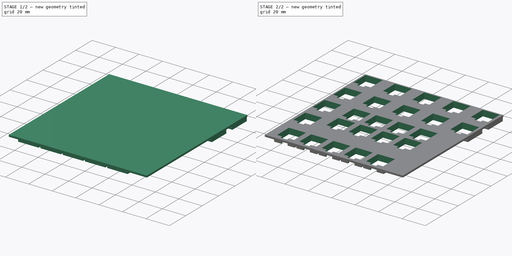
[diagram: build sequence overview — one tinted view per stage of 2, left to right]
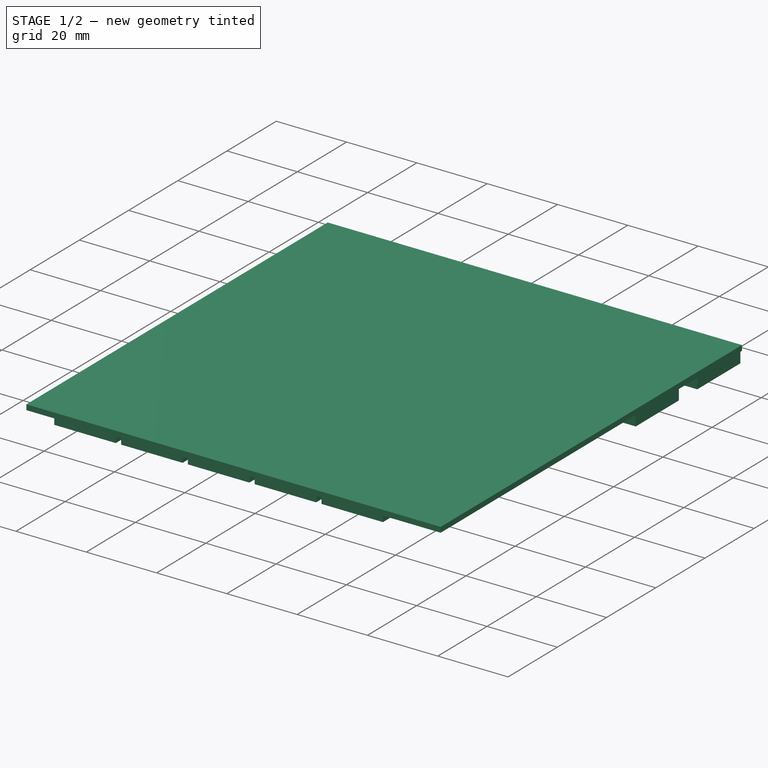
[diagram: stage 1 of 2 — iso view after this stage's code; geometry added in this stage tinted green]
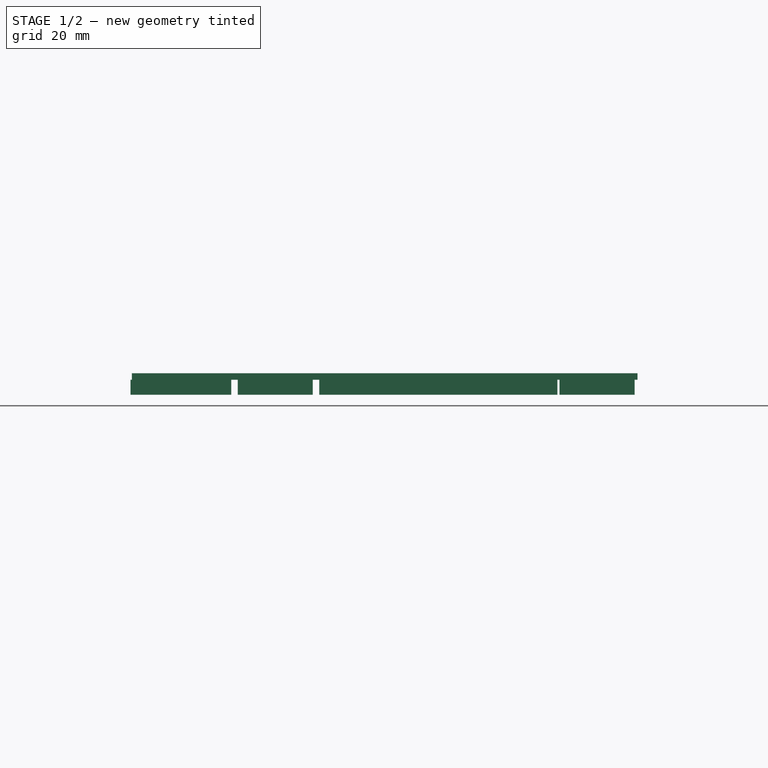
[diagram: stage 1 of 2 — front view after this stage's code; geometry added in this stage tinted green]
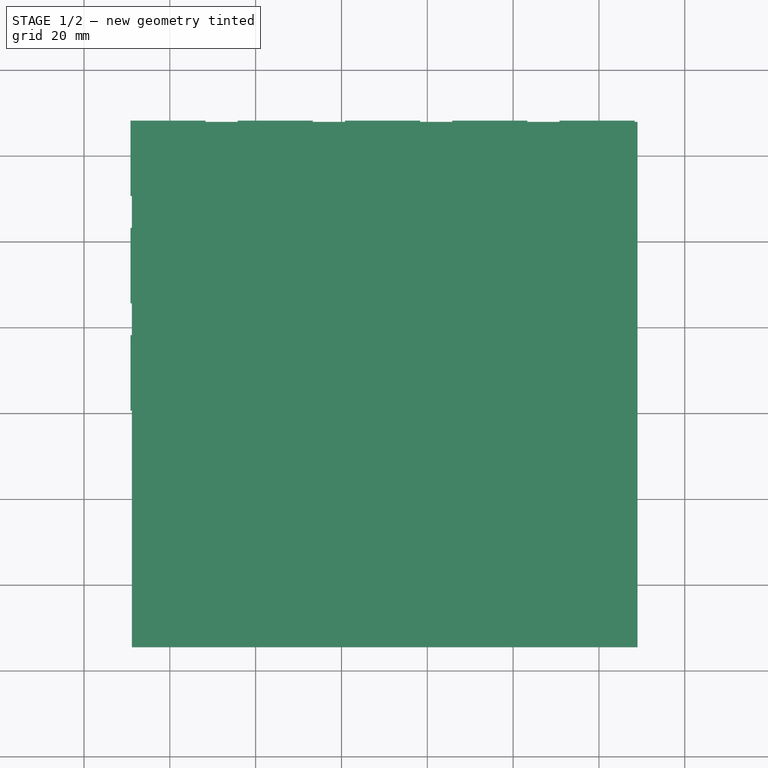
[diagram: stage 1 of 2 — top view after this stage's code; geometry added in this stage tinted green]
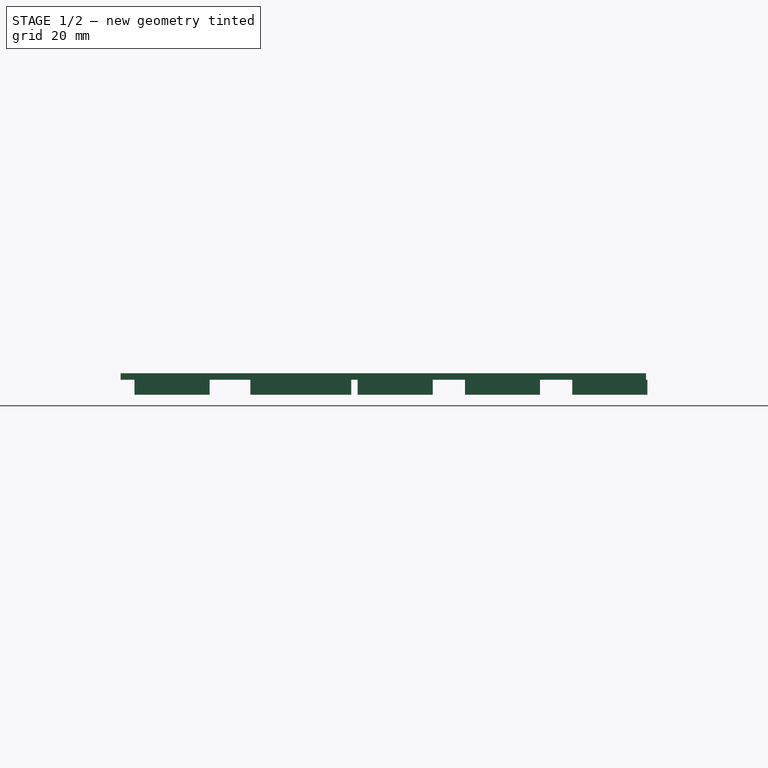
[diagram: stage 1 of 2 — right view after this stage's code; geometry added in this stage tinted green]
FCSTD DOCUMENT  (FreeCAD 0.20R29603 (Git))
Label: PotKeyPlate
License: All rights reserved
LicenseURL: http://en.wikipedia.org/wiki/All_rights_reserved
objects: Sketcher::SketchObject×5, PartDesign::Pad×2, PartDesign::Plane×2, PartDesign::Pocket×2, PartDesign::Body×1
note: 16 computed .brp shape members not serialized (recipe doc carries the construction recipe); baked Part::Feature solids carry a one-line shape summary decoded from their .brp

FEATURE [Sketcher::SketchObject] Sketch002  label="plate_pad"
  FullyConstrained = true
  MapMode = 5
  Support = -> [XY_Plane]
  sketch-geometry (4):
    g0: LineSegment StartX=151.152 StartY=-32.133 StartZ=0 EndX=269 EndY=-32.133 EndZ=0
    g1: LineSegment StartX=269 StartY=-32.133 StartZ=0 EndX=269 EndY=-154.55 EndZ=0
    g2: LineSegment StartX=269 StartY=-154.55 StartZ=0 EndX=151.152 EndY=-154.55 EndZ=0
    g3: LineSegment StartX=151.152 StartY=-154.55 StartZ=0 EndX=151.152 EndY=-32.133 EndZ=0
  constraints (12):
    c: Coincident(g0,g1)
    c: Coincident(g1,g2)
    c: Coincident(g2,g3)
    c: Coincident(g3,g0)
    c: Horizontal(g0)
    c: Horizontal(g2)
    c: Vertical(g1)
    c: Vertical(g3)
    c: DistanceX(g-1,g2) = 151.152
    c: DistanceY(g2,g-1) = 154.55
    c: DistanceY(g0,g-1) = 32.133
    c: DistanceX(g-1,g0) = 269
FEATURE [PartDesign::Pad] Pad
  Direction = (0,0,1)
  Length = 1.5
  Length2 = 10
  Profile = -> Sketch002
  ReferenceAxis = -> Sketch002 [N_Axis]
  Type = 0
FEATURE [Sketcher::SketchObject] Sketch011  label="WholeSketch005"
  FullyConstrained = true
  MapMode = 5
  Support = -> [XY_Plane]
  sketch-geometry (254):
    g0: LineSegment StartX=156.82 StartY=-44.62 StartZ=0 EndX=162.32 EndY=-44.62 EndZ=0
    g1: LineSegment StartX=162.32 StartY=-44.62 StartZ=0 EndX=162.32 EndY=-50.12 EndZ=0
    g2: LineSegment StartX=162.32 StartY=-50.12 StartZ=0 EndX=156.82 EndY=-50.12 EndZ=0
    g3: LineSegment StartX=156.82 StartY=-50.12 StartZ=0 EndX=156.82 EndY=-44.62 EndZ=0
    g4: GeomPoint X=159.57 Y=-47.37 Z=0
    g5: LineSegment StartX=152.57 StartY=-33.57 StartZ=0 EndX=166.57 EndY=-33.57 EndZ=0
    g6: LineSegment StartX=166.57 StartY=-33.57 StartZ=0 EndX=166.57 EndY=-47.57 EndZ=0
    g7: LineSegment StartX=166.57 StartY=-47.57 StartZ=0 EndX=152.57 EndY=-47.57 EndZ=0
    g8: LineSegment StartX=152.57 StartY=-47.57 StartZ=0 EndX=152.57 EndY=-33.57 EndZ=0
    g9: GeomPoint X=159.57 Y=-40.57 Z=0
    g10: LineSegment StartX=177.57 StartY=-33.57 StartZ=0 EndX=191.57 EndY=-33.57 EndZ=0
    g11: LineSegment StartX=191.57 StartY=-33.57 StartZ=0 EndX=191.57 EndY=-47.57 EndZ=0
    g12: LineSegment StartX=191.57 StartY=-47.57 StartZ=0 EndX=177.57 EndY=-47.57 EndZ=0
    g13: LineSegment StartX=177.57 StartY=-47.57 StartZ=0 EndX=177.57 EndY=-33.57 EndZ=0
    g14: GeomPoint X=184.57 Y=-40.57 Z=0
    g15: LineSegment StartX=202.57 StartY=-33.57 StartZ=0 EndX=216.57 EndY=-33.57 EndZ=0
    g16: LineSegment StartX=216.57 StartY=-33.57 StartZ=0 EndX=216.57 EndY=-47.57 EndZ=0
    g17: LineSegment StartX=216.57 StartY=-47.57 StartZ=0 EndX=202.57 EndY=-47.57 EndZ=0
    g18: LineSegment StartX=202.57 StartY=-47.57 StartZ=0 EndX=202.57 EndY=-33.57 EndZ=0
    g19: GeomPoint X=209.57 Y=-40.57 Z=0
    g20: LineSegment StartX=227.57 StartY=-33.57 StartZ=0 EndX=241.57 EndY=-33.57 EndZ=0
    g21: LineSegment StartX=241.57 StartY=-33.57 StartZ=0 EndX=241.57 EndY=-47.57 EndZ=0
    g22: LineSegment StartX=241.57 StartY=-47.57 StartZ=0 EndX=227.57 EndY=-47.57 EndZ=0
    g23: LineSegment StartX=227.57 StartY=-47.57 StartZ=0 EndX=227.57 EndY=-33.57 EndZ=0
    g24: GeomPoint X=234.57 Y=-40.57 Z=0
    g25: LineSegment StartX=252.57 StartY=-33.57 StartZ=0 EndX=266.57 EndY=-33.57 EndZ=0
    g26: LineSegment StartX=266.57 StartY=-33.57 StartZ=0 EndX=266.57 EndY=-47.57 EndZ=0
    g27: LineSegment StartX=266.57 StartY=-47.57 StartZ=0 EndX=252.57 EndY=-47.57 EndZ=0
    g28: LineSegment StartX=252.57 StartY=-47.57 StartZ=0 EndX=252.57 EndY=-33.57 EndZ=0
    g29: GeomPoint X=259.57 Y=-40.57 Z=0
    g30: LineSegment StartX=152.57 StartY=-58.57 StartZ=0 EndX=166.57 EndY=-58.57 EndZ=0
    g31: LineSegment StartX=166.57 StartY=-58.57 StartZ=0 EndX=166.57 EndY=-72.57 EndZ=0
    g32: LineSegment StartX=166.57 StartY=-72.57 StartZ=0 EndX=152.57 EndY=-72.57 EndZ=0
    g33: LineSegment StartX=152.57 StartY=-72.57 StartZ=0 EndX=152.57 EndY=-58.57 EndZ=0
    g34: GeomPoint X=159.57 Y=-65.57 Z=0
    g35: LineSegment StartX=177.57 StartY=-58.57 StartZ=0 EndX=191.57 EndY=-58.57 EndZ=0
    g36: LineSegment StartX=191.57 StartY=-58.57 StartZ=0 EndX=191.57 EndY=-72.57 EndZ=0
    g37: LineSegment StartX=191.57 StartY=-72.57 StartZ=0 EndX=177.57 EndY=-72.57 EndZ=0
    g38: LineSegment StartX=177.57 StartY=-72.57 StartZ=0 EndX=177.57 EndY=-58.57 EndZ=0
    g39: GeomPoint X=184.57 Y=-65.57 Z=0
    g40: LineSegment StartX=202.57 StartY=-58.57 StartZ=0 EndX=216.57 EndY=-58.57 EndZ=0
    g41: LineSegment StartX=216.57 StartY=-58.57 StartZ=0 EndX=216.57 EndY=-72.57 EndZ=0
    g42: LineSegment StartX=216.57 StartY=-72.57 StartZ=0 EndX=202.57 EndY=-72.57 EndZ=0
    g43: LineSegment StartX=202.57 StartY=-72.57 StartZ=0 EndX=202.57 EndY=-58.57 EndZ=0
    g44: GeomPoint X=209.57 Y=-65.57 Z=0
    g45: LineSegment StartX=227.57 StartY=-58.57 StartZ=0 EndX=241.57 EndY=-58.57 EndZ=0
    g46: LineSegment StartX=241.57 StartY=-58.57 StartZ=0 EndX=241.57 EndY=-72.57 EndZ=0
    g47: LineSegment StartX=241.57 StartY=-72.57 StartZ=0 EndX=227.57 EndY=-72.57 EndZ=0
    g48: LineSegment StartX=227.57 StartY=-72.57 StartZ=0 EndX=227.57 EndY=-58.57 EndZ=0
    g49: GeomPoint X=234.57 Y=-65.57 Z=0
    g50: LineSegment StartX=252.57 StartY=-58.57 StartZ=0 EndX=266.57 EndY=-58.57 EndZ=0
    g51: LineSegment StartX=266.57 StartY=-58.57 StartZ=0 EndX=266.57 EndY=-72.57 EndZ=0
    g52: LineSegment StartX=266.57 StartY=-72.57 StartZ=0 EndX=252.57 EndY=-72.57 EndZ=0
    g53: LineSegment StartX=252.57 StartY=-72.57 StartZ=0 EndX=252.57 EndY=-58.57 EndZ=0
    g54: GeomPoint X=259.57 Y=-65.57 Z=0
    g55: LineSegment StartX=152.57 StartY=-83.57 StartZ=0 EndX=166.57 EndY=-83.57 EndZ=0
    g56: LineSegment StartX=166.57 StartY=-83.57 StartZ=0 EndX=166.57 EndY=-97.57 EndZ=0
    g57: LineSegment StartX=166.57 StartY=-97.57 StartZ=0 EndX=152.57 EndY=-97.57 EndZ=0
    g58: LineSegment StartX=152.57 StartY=-97.57 StartZ=0 EndX=152.57 EndY=-83.57 EndZ=0
    g59: GeomPoint X=159.57 Y=-90.57 Z=0
    g60: LineSegment StartX=177.57 StartY=-83.57 StartZ=0 EndX=191.57 EndY=-83.57 EndZ=0
    g61: LineSegment StartX=191.57 StartY=-83.57 StartZ=0 EndX=191.57 EndY=-97.57 EndZ=0
    g62: LineSegment StartX=191.57 StartY=-97.57 StartZ=0 EndX=177.57 EndY=-97.57 EndZ=0
    g63: LineSegment StartX=177.57 StartY=-97.57 StartZ=0 EndX=177.57 EndY=-83.57 EndZ=0
    g64: GeomPoint X=184.57 Y=-90.57 Z=0
    g65: LineSegment StartX=196.57 StartY=-83.57 StartZ=0 EndX=210.57 EndY=-83.57 EndZ=0
    g66: LineSegment StartX=210.57 StartY=-83.57 StartZ=0 EndX=210.57 EndY=-97.57 EndZ=0
    g67: LineSegment StartX=210.57 StartY=-97.57 StartZ=0 EndX=196.57 EndY=-97.57 EndZ=0
    g68: LineSegment StartX=196.57 StartY=-97.57 StartZ=0 EndX=196.57 EndY=-83.57 EndZ=0
    g69: GeomPoint X=203.57 Y=-90.57 Z=0
    g70: LineSegment StartX=215.57 StartY=-83.57 StartZ=0 EndX=229.57 EndY=-83.57 EndZ=0
    g71: LineSegment StartX=229.57 StartY=-83.57 StartZ=0 EndX=229.57 EndY=-97.57 EndZ=0
    g72: LineSegment StartX=229.57 StartY=-97.57 StartZ=0 EndX=215.57 EndY=-97.57 EndZ=0
    g73: LineSegment StartX=215.57 StartY=-97.57 StartZ=0 EndX=215.57 EndY=-83.57 EndZ=0
    g74: GeomPoint X=222.57 Y=-90.57 Z=0
    g75: LineSegment StartX=234.57 StartY=-83.57 StartZ=0 EndX=248.57 EndY=-83.57 EndZ=0
    g76: LineSegment StartX=248.57 StartY=-83.57 StartZ=0 EndX=248.57 EndY=-97.57 EndZ=0
    g77: LineSegment StartX=248.57 StartY=-97.57 StartZ=0 EndX=234.57 EndY=-97.57 EndZ=0
    g78: LineSegment StartX=234.57 StartY=-97.57 StartZ=0 EndX=234.57 EndY=-83.57 EndZ=0
    g79: GeomPoint X=241.57 Y=-90.57 Z=0
    g80: LineSegment StartX=153.57 StartY=-108.57 StartZ=0 EndX=167.57 EndY=-108.57 EndZ=0
    g81: LineSegment StartX=167.57 StartY=-108.57 StartZ=0 EndX=167.57 EndY=-122.57 EndZ=0
    g82: LineSegment StartX=167.57 StartY=-122.57 StartZ=0 EndX=153.57 EndY=-122.57 EndZ=0
    g83: LineSegment StartX=153.57 StartY=-122.57 StartZ=0 EndX=153.57 EndY=-108.57 EndZ=0
    g84: GeomPoint X=160.57 Y=-115.57 Z=0
    g85: LineSegment StartX=177.57 StartY=-102.57 StartZ=0 EndX=191.57 EndY=-102.57 EndZ=0
    g86: LineSegment StartX=191.57 StartY=-102.57 StartZ=0 EndX=191.57 EndY=-116.57 EndZ=0
    g87: LineSegment StartX=191.57 StartY=-116.57 StartZ=0 EndX=177.57 EndY=-116.57 EndZ=0
    g88: LineSegment StartX=177.57 StartY=-116.57 StartZ=0 EndX=177.57 EndY=-102.57 EndZ=0
    g89: GeomPoint X=184.57 Y=-109.57 Z=0
    g90: LineSegment StartX=196.57 StartY=-102.57 StartZ=0 EndX=210.57 EndY=-102.57 EndZ=0
    g91: LineSegment StartX=210.57 StartY=-102.57 StartZ=0 EndX=210.57 EndY=-116.57 EndZ=0
    g92: LineSegment StartX=210.57 StartY=-116.57 StartZ=0 EndX=196.57 EndY=-116.57 EndZ=0
    g93: LineSegment StartX=196.57 StartY=-116.57 StartZ=0 EndX=196.57 EndY=-102.57 EndZ=0
    g94: GeomPoint X=203.57 Y=-109.57 Z=0
    g95: LineSegment StartX=215.57 StartY=-102.57 StartZ=0 EndX=229.57 EndY=-102.57 EndZ=0
    g96: LineSegment StartX=229.57 StartY=-102.57 StartZ=0 EndX=229.57 EndY=-116.57 EndZ=0
    g97: LineSegment StartX=229.57 StartY=-116.57 StartZ=0 EndX=215.57 EndY=-116.57 EndZ=0
    g98: LineSegment StartX=215.57 StartY=-116.57 StartZ=0 EndX=215.57 EndY=-102.57 EndZ=0
    g99: GeomPoint X=222.57 Y=-109.57 Z=0
    g100: LineSegment StartX=234.57 StartY=-102.57 StartZ=0 EndX=248.57 EndY=-102.57 EndZ=0
    g101: LineSegment StartX=248.57 StartY=-102.57 StartZ=0 EndX=248.57 EndY=-116.57 EndZ=0
    g102: LineSegment StartX=248.57 StartY=-116.57 StartZ=0 EndX=234.57 EndY=-116.57 EndZ=0
    g103: LineSegment StartX=234.57 StartY=-116.57 StartZ=0 EndX=234.57 EndY=-102.57 EndZ=0
    g104: GeomPoint X=241.57 Y=-109.57 Z=0
    g105: LineSegment StartX=158.57 StartY=-135.57 StartZ=0 EndX=172.57 EndY=-135.57 EndZ=0
    g106: LineSegment StartX=172.57 StartY=-135.57 StartZ=0 EndX=172.57 EndY=-149.57 EndZ=0
    g107: LineSegment StartX=172.57 StartY=-149.57 StartZ=0 EndX=158.57 EndY=-149.57 EndZ=0
    g108: LineSegment StartX=158.57 StartY=-149.57 StartZ=0 EndX=158.57 EndY=-135.57 EndZ=0
    g109: GeomPoint X=165.57 Y=-142.57 Z=0
    g110: LineSegment StartX=177.57 StartY=-135.57 StartZ=0 EndX=191.57 EndY=-135.57 EndZ=0
    g111: LineSegment StartX=191.57 StartY=-135.57 StartZ=0 EndX=191.57 EndY=-149.57 EndZ=0
    g112: LineSegment StartX=191.57 StartY=-149.57 StartZ=0 EndX=177.57 EndY=-149.57 EndZ=0
    g113: LineSegment StartX=177.57 StartY=-149.57 StartZ=0 EndX=177.57 EndY=-135.57 EndZ=0
    g114: GeomPoint X=184.57 Y=-142.57 Z=0
    g115: LineSegment StartX=196.57 StartY=-135.57 StartZ=0 EndX=210.57 EndY=-135.57 EndZ=0
    g116: LineSegment StartX=210.57 StartY=-135.57 StartZ=0 EndX=210.57 EndY=-149.57 EndZ=0
    g117: LineSegment StartX=210.57 StartY=-149.57 StartZ=0 EndX=196.57 EndY=-149.57 EndZ=0
    g118: LineSegment StartX=196.57 StartY=-149.57 StartZ=0 EndX=196.57 EndY=-135.57 EndZ=0
    g119: GeomPoint X=203.57 Y=-142.57 Z=0
    g120: LineSegment StartX=215.57 StartY=-135.57 StartZ=0 EndX=229.57 EndY=-135.57 EndZ=0
    g121: LineSegment StartX=229.57 StartY=-135.57 StartZ=0 EndX=229.57 EndY=-149.57 EndZ=0
    g122: LineSegment StartX=229.57 StartY=-149.57 StartZ=0 EndX=215.57 EndY=-149.57 EndZ=0
    g123: LineSegment StartX=215.57 StartY=-149.57 StartZ=0 EndX=215.57 EndY=-135.57 EndZ=0
    g124: GeomPoint X=222.57 Y=-142.57 Z=0
    g125: LineSegment StartX=234.57 StartY=-135.57 StartZ=0 EndX=248.57 EndY=-135.57 EndZ=0
    g126: LineSegment StartX=248.57 StartY=-135.57 StartZ=0 EndX=248.57 EndY=-149.57 EndZ=0
    g127: LineSegment StartX=248.57 StartY=-149.57 StartZ=0 EndX=234.57 EndY=-149.57 EndZ=0
    g128: LineSegment StartX=234.57 StartY=-149.57 StartZ=0 EndX=234.57 EndY=-135.57 EndZ=0
    g129: GeomPoint X=241.57 Y=-142.57 Z=0
    g130: LineSegment StartX=181.82 StartY=-44.62 StartZ=0 EndX=187.32 EndY=-44.62 EndZ=0
    g131: LineSegment StartX=187.32 StartY=-44.62 StartZ=0 EndX=187.32 EndY=-50.12 EndZ=0
    g132: LineSegment StartX=187.32 StartY=-50.12 StartZ=0 EndX=181.82 EndY=-50.12 EndZ=0
    g133: LineSegment StartX=181.82 StartY=-50.12 StartZ=0 EndX=181.82 EndY=-44.62 EndZ=0
    g134: GeomPoint X=184.57 Y=-47.37 Z=0
    g135: LineSegment StartX=207.65 StartY=-44.62 StartZ=0 EndX=213.15 EndY=-44.62 EndZ=0
    g136: LineSegment StartX=213.15 StartY=-44.62 StartZ=0 EndX=213.15 EndY=-50.12 EndZ=0
    g137: LineSegment StartX=213.15 StartY=-50.12 StartZ=0 EndX=207.65 EndY=-50.12 EndZ=0
    g138: LineSegment StartX=207.65 StartY=-50.12 StartZ=0 EndX=207.65 EndY=-44.62 EndZ=0
    g139: GeomPoint X=210.4 Y=-47.37 Z=0
    g140: LineSegment StartX=231.82 StartY=-44.62 StartZ=0 EndX=237.32 EndY=-44.62 EndZ=0
    g141: LineSegment StartX=237.32 StartY=-44.62 StartZ=0 EndX=237.32 EndY=-50.12 EndZ=0
    g142: LineSegment StartX=237.32 StartY=-50.12 StartZ=0 EndX=231.82 EndY=-50.12 EndZ=0
    g143: LineSegment StartX=231.82 StartY=-50.12 StartZ=0 EndX=231.82 EndY=-44.62 EndZ=0
    g144: GeomPoint X=234.57 Y=-47.37 Z=0
    g145: LineSegment StartX=256.82 StartY=-44.62 StartZ=0 EndX=262.32 EndY=-44.62 EndZ=0
    g146: LineSegment StartX=262.32 StartY=-44.62 StartZ=0 EndX=262.32 EndY=-50.12 EndZ=0
    g147: LineSegment StartX=262.32 StartY=-50.12 StartZ=0 EndX=256.82 EndY=-50.12 EndZ=0
    g148: LineSegment StartX=256.82 StartY=-50.12 StartZ=0 EndX=256.82 EndY=-44.62 EndZ=0
    g149: GeomPoint X=259.57 Y=-47.37 Z=0
    g150: LineSegment StartX=156.82 StartY=-69.62 StartZ=0 EndX=162.32 EndY=-69.62 EndZ=0
    g151: LineSegment StartX=162.32 StartY=-69.62 StartZ=0 EndX=162.32 EndY=-75.12 EndZ=0
    g152: LineSegment StartX=162.32 StartY=-75.12 StartZ=0 EndX=156.82 EndY=-75.12 EndZ=0
    g153: LineSegment StartX=156.82 StartY=-75.12 StartZ=0 EndX=156.82 EndY=-69.62 EndZ=0
    g154: GeomPoint X=159.57 Y=-72.37 Z=0
    g155: LineSegment StartX=181.82 StartY=-69.62 StartZ=0 EndX=187.32 EndY=-69.62 EndZ=0
    g156: LineSegment StartX=187.32 StartY=-69.62 StartZ=0 EndX=187.32 EndY=-75.12 EndZ=0
    g157: LineSegment StartX=187.32 StartY=-75.12 StartZ=0 EndX=181.82 EndY=-75.12 EndZ=0
    g158: LineSegment StartX=181.82 StartY=-75.12 StartZ=0 EndX=181.82 EndY=-69.62 EndZ=0
    g159: GeomPoint X=184.57 Y=-72.37 Z=0
    g160: LineSegment StartX=206.82 StartY=-69.62 StartZ=0 EndX=212.32 EndY=-69.62 EndZ=0
    g161: LineSegment StartX=212.32 StartY=-69.62 StartZ=0 EndX=212.32 EndY=-75.12 EndZ=0
    g162: LineSegment StartX=212.32 StartY=-75.12 StartZ=0 EndX=206.82 EndY=-75.12 EndZ=0
    g163: LineSegment StartX=206.82 StartY=-75.12 StartZ=0 EndX=206.82 EndY=-69.62 EndZ=0
    g164: GeomPoint X=209.57 Y=-72.37 Z=0
    g165: LineSegment StartX=231.82 StartY=-69.62 StartZ=0 EndX=237.32 EndY=-69.62 EndZ=0
    g166: LineSegment StartX=237.32 StartY=-69.62 StartZ=0 EndX=237.32 EndY=-75.12 EndZ=0
    g167: LineSegment StartX=237.32 StartY=-75.12 StartZ=0 EndX=231.82 EndY=-75.12 EndZ=0
    g168: LineSegment StartX=231.82 StartY=-75.12 StartZ=0 EndX=231.82 EndY=-69.62 EndZ=0
    g169: GeomPoint X=234.57 Y=-72.37 Z=0
    g170: LineSegment StartX=256.82 StartY=-69.62 StartZ=0 EndX=262.32 EndY=-69.62 EndZ=0
    g171: LineSegment StartX=262.32 StartY=-69.62 StartZ=0 EndX=262.32 EndY=-75.12 EndZ=0
    g172: LineSegment StartX=262.32 StartY=-75.12 StartZ=0 EndX=256.82 EndY=-75.12 EndZ=0
    g173: LineSegment StartX=256.82 StartY=-75.12 StartZ=0 EndX=256.82 EndY=-69.62 EndZ=0
    g174: GeomPoint X=259.57 Y=-72.37 Z=0
    g175: LineSegment StartX=156.82 StartY=-94.62 StartZ=0 EndX=162.32 EndY=-94.62 EndZ=0
    g176: LineSegment StartX=162.32 StartY=-94.62 StartZ=0 EndX=162.32 EndY=-100.12 EndZ=0
    g177: LineSegment StartX=162.32 StartY=-100.12 StartZ=0 EndX=156.82 EndY=-100.12 EndZ=0
    g178: LineSegment StartX=156.82 StartY=-100.12 StartZ=0 EndX=156.82 EndY=-94.62 EndZ=0
    g179: GeomPoint X=159.57 Y=-97.37 Z=0
    g180: LineSegment StartX=181.82 StartY=-94.62 StartZ=0 EndX=187.32 EndY=-94.62 EndZ=0
    g181: LineSegment StartX=187.32 StartY=-94.62 StartZ=0 EndX=187.32 EndY=-100.12 EndZ=0
    g182: LineSegment StartX=187.32 StartY=-100.12 StartZ=0 EndX=181.82 EndY=-100.12 EndZ=0
    g183: LineSegment StartX=181.82 StartY=-100.12 StartZ=0 EndX=181.82 EndY=-94.62 EndZ=0
    g184: GeomPoint X=184.57 Y=-97.37 Z=0
    g185: LineSegment StartX=200.82 StartY=-94.62 StartZ=0 EndX=206.32 EndY=-94.62 EndZ=0
    g186: LineSegment StartX=206.32 StartY=-94.62 StartZ=0 EndX=206.32 EndY=-100.12 EndZ=0
    g187: LineSegment StartX=206.32 StartY=-100.12 StartZ=0 EndX=200.82 EndY=-100.12 EndZ=0
    g188: LineSegment StartX=200.82 StartY=-100.12 StartZ=0 EndX=200.82 EndY=-94.62 EndZ=0
    g189: GeomPoint X=203.57 Y=-97.37 Z=0
    g190: LineSegment StartX=219.82 StartY=-94.62 StartZ=0 EndX=225.32 EndY=-94.62 EndZ=0
    g191: LineSegment StartX=225.32 StartY=-94.62 StartZ=0 EndX=225.32 EndY=-100.12 EndZ=0
    g192: LineSegment StartX=225.32 StartY=-100.12 StartZ=0 EndX=219.82 EndY=-100.12 EndZ=0
    g193: LineSegment StartX=219.82 StartY=-100.12 StartZ=0 EndX=219.82 EndY=-94.62 EndZ=0
    g194: GeomPoint X=222.57 Y=-97.37 Z=0
    g195: LineSegment StartX=238.82 StartY=-94.62 StartZ=0 EndX=244.32 EndY=-94.62 EndZ=0
    g196: LineSegment StartX=244.32 StartY=-94.62 StartZ=0 EndX=244.32 EndY=-100.12 EndZ=0
    g197: LineSegment StartX=244.32 StartY=-100.12 StartZ=0 EndX=238.82 EndY=-100.12 EndZ=0
    g198: LineSegment StartX=238.82 StartY=-100.12 StartZ=0 EndX=238.82 EndY=-94.62 EndZ=0
    g199: GeomPoint X=241.57 Y=-97.37 Z=0
    g200: LineSegment StartX=157.82 StartY=-119.62 StartZ=0 EndX=163.32 EndY=-119.62 EndZ=0
    g201: LineSegment StartX=163.32 StartY=-119.62 StartZ=0 EndX=163.32 EndY=-125.12 EndZ=0
    g202: LineSegment StartX=163.32 StartY=-125.12 StartZ=0 EndX=157.82 EndY=-125.12 EndZ=0
    g203: LineSegment StartX=157.82 StartY=-125.12 StartZ=0 EndX=157.82 EndY=-119.62 EndZ=0
    g204: GeomPoint X=160.57 Y=-122.37 Z=0
    g205: LineSegment StartX=181.82 StartY=-113.62 StartZ=0 EndX=187.32 EndY=-113.62 EndZ=0
    g206: LineSegment StartX=187.32 StartY=-113.62 StartZ=0 EndX=187.32 EndY=-119.12 EndZ=0
    g207: LineSegment StartX=187.32 StartY=-119.12 StartZ=0 EndX=181.82 EndY=-119.12 EndZ=0
    g208: LineSegment StartX=181.82 StartY=-119.12 StartZ=0 EndX=181.82 EndY=-113.62 EndZ=0
    g209: GeomPoint X=184.57 Y=-116.37 Z=0
    g210: LineSegment StartX=200.82 StartY=-113.62 StartZ=0 EndX=206.32 EndY=-113.62 EndZ=0
    g211: LineSegment StartX=206.32 StartY=-113.62 StartZ=0 EndX=206.32 EndY=-119.12 EndZ=0
    g212: LineSegment StartX=206.32 StartY=-119.12 StartZ=0 EndX=200.82 EndY=-119.12 EndZ=0
    g213: LineSegment StartX=200.82 StartY=-119.12 StartZ=0 EndX=200.82 EndY=-113.62 EndZ=0
    g214: GeomPoint X=203.57 Y=-116.37 Z=0
    g215: LineSegment StartX=219.82 StartY=-113.62 StartZ=0 EndX=225.32 EndY=-113.62 EndZ=0
    g216: LineSegment StartX=225.32 StartY=-113.62 StartZ=0 EndX=225.32 EndY=-119.12 EndZ=0
    g217: LineSegment StartX=225.32 StartY=-119.12 StartZ=0 EndX=219.82 EndY=-119.12 EndZ=0
    g218: LineSegment StartX=219.82 StartY=-119.12 StartZ=0 EndX=219.82 EndY=-113.62 EndZ=0
    g219: GeomPoint X=222.57 Y=-116.37 Z=0
    g220: LineSegment StartX=238.82 StartY=-113.62 StartZ=0 EndX=244.32 EndY=-113.62 EndZ=0
    g221: LineSegment StartX=244.32 StartY=-113.62 StartZ=0 EndX=244.32 EndY=-119.12 EndZ=0
    g222: LineSegment StartX=244.32 StartY=-119.12 StartZ=0 EndX=238.82 EndY=-119.12 EndZ=0
    g223: LineSegment StartX=238.82 StartY=-119.12 StartZ=0 EndX=238.82 EndY=-113.62 EndZ=0
    g224: GeomPoint X=241.57 Y=-116.37 Z=0
    g225: LineSegment StartX=162.82 StartY=-146.62 StartZ=0 EndX=168.32 EndY=-146.62 EndZ=0
    g226: LineSegment StartX=168.32 StartY=-146.62 StartZ=0 EndX=168.32 EndY=-152.12 EndZ=0
    g227: LineSegment StartX=168.32 StartY=-152.12 StartZ=0 EndX=162.82 EndY=-152.12 EndZ=0
    g228: LineSegment StartX=162.82 StartY=-152.12 StartZ=0 EndX=162.82 EndY=-146.62 EndZ=0
    g229: GeomPoint X=165.57 Y=-149.37 Z=0
    g230: LineSegment StartX=181.82 StartY=-146.62 StartZ=0 EndX=187.32 EndY=-146.62 EndZ=0
    g231: LineSegment StartX=187.32 StartY=-146.62 StartZ=0 EndX=187.32 EndY=-152.12 EndZ=0
    g232: LineSegment StartX=187.32 StartY=-152.12 StartZ=0 EndX=181.82 EndY=-152.12 EndZ=0
    g233: LineSegment StartX=181.82 StartY=-152.12 StartZ=0 EndX=181.82 EndY=-146.62 EndZ=0
    g234: GeomPoint X=184.57 Y=-149.37 Z=0
    g235: LineSegment StartX=200.82 StartY=-146.62 StartZ=0 EndX=206.32 EndY=-146.62 EndZ=0
    g236: LineSegment StartX=206.32 StartY=-146.62 StartZ=0 EndX=206.32 EndY=-152.12 EndZ=0
    g237: LineSegment StartX=206.32 StartY=-152.12 StartZ=0 EndX=200.82 EndY=-152.12 EndZ=0
    g238: LineSegment StartX=200.82 StartY=-152.12 StartZ=0 EndX=200.82 EndY=-146.62 EndZ=0
    g239: GeomPoint X=203.57 Y=-149.37 Z=0
    g240: LineSegment StartX=219.82 StartY=-146.62 StartZ=0 EndX=225.32 EndY=-146.62 EndZ=0
    g241: LineSegment StartX=225.32 StartY=-146.62 StartZ=0 EndX=225.32 EndY=-152.12 EndZ=0
    g242: LineSegment StartX=225.32 StartY=-152.12 StartZ=0 EndX=219.82 EndY=-152.12 EndZ=0
    g243: LineSegment StartX=219.82 StartY=-152.12 StartZ=0 EndX=219.82 EndY=-146.62 EndZ=0
    g244: GeomPoint X=222.57 Y=-149.37 Z=0
    g245: LineSegment StartX=238.82 StartY=-146.62 StartZ=0 EndX=244.32 EndY=-146.62 EndZ=0
    g246: LineSegment StartX=244.32 StartY=-146.62 StartZ=0 EndX=244.32 EndY=-152.12 EndZ=0
    g247: LineSegment StartX=244.32 StartY=-152.12 StartZ=0 EndX=238.82 EndY=-152.12 EndZ=0
    g248: LineSegment StartX=238.82 StartY=-152.12 StartZ=0 EndX=238.82 EndY=-146.62 EndZ=0
    g249: GeomPoint X=241.57 Y=-149.37 Z=0
    g250: LineSegment StartX=151.152 StartY=-32.133 StartZ=0 EndX=269 EndY=-32.133 EndZ=0
    g251: LineSegment StartX=269 StartY=-32.133 StartZ=0 EndX=269 EndY=-154.55 EndZ=0
    g252: LineSegment StartX=269 StartY=-154.55 StartZ=0 EndX=151.152 EndY=-154.55 EndZ=0
    g253: LineSegment StartX=151.152 StartY=-154.55 StartZ=0 EndX=151.152 EndY=-32.133 EndZ=0
  constraints (662):
    c: Coincident(g0,g1)
    c: Coincident(g1,g2)
    c: Coincident(g2,g3)
    c: Coincident(g3,g0)
    c: Horizontal(g0)
    c: Horizontal(g2)
    c: Vertical(g1)
    c: Vertical(g3)
    c: DistanceY(g1,g1) = 5.5
    c: DistanceX(g2,g2) = 5.5
    c: Symmetric(g0,g2,g4)
    c: Coincident(g5,g6)
    c: Coincident(g6,g7)
    c: Coincident(g7,g8)
    c: Coincident(g8,g5)
    c: Horizontal(g5)
    c: Horizontal(g7)
    c: Vertical(g6)
    c: Vertical(g8)
    c: DistanceY(g6,g6) = 14
    c: DistanceX(g5,g5) = 14
    c: Symmetric(g5,g7,g9)
    c: Coincident(g10,g11)
    c: Coincident(g11,g12)
    c: Coincident(g12,g13)
    c: Coincident(g13,g10)
    c: Horizontal(g10)
    c: Horizontal(g12)
    c: Vertical(g11)
    c: Vertical(g13)
    c: DistanceY(g11,g11) = 14
    c: DistanceX(g10,g10) = 14
    c: Symmetric(g10,g12,g14)
    c: Coincident(g15,g16)
    c: Coincident(g16,g17)
    c: Coincident(g17,g18)
    c: Coincident(g18,g15)
    c: Horizontal(g15)
    c: Horizontal(g17)
    c: Vertical(g16)
    c: Vertical(g18)
    c: DistanceY(g16,g16) = 14
    c: DistanceX(g15,g15) = 14
    c: Symmetric(g15,g17,g19)
    c: Coincident(g20,g21)
    c: Coincident(g21,g22)
    c: Coincident(g22,g23)
    c: Coincident(g23,g20)
    c: Horizontal(g20)
    c: Horizontal(g22)
    c: Vertical(g21)
    c: Vertical(g23)
    c: DistanceY(g21,g21) = 14
    c: DistanceX(g20,g20) = 14
    c: Symmetric(g20,g22,g24)
    c: Coincident(g25,g26)
    c: Coincident(g26,g27)
    c: Coincident(g27,g28)
    c: Coincident(g28,g25)
    c: Horizontal(g25)
    c: Horizontal(g27)
    c: Vertical(g26)
    c: Vertical(g28)
    c: DistanceY(g26,g26) = 14
    c: DistanceX(g25,g25) = 14
    c: Symmetric(g25,g27,g29)
    c: Coincident(g30,g31)
    c: Coincident(g31,g32)
    c: Coincident(g32,g33)
    c: Coincident(g33,g30)
    c: Horizontal(g30)
    c: Horizontal(g32)
    c: Vertical(g31)
    c: Vertical(g33)
    c: DistanceY(g31,g31) = 14
    c: DistanceX(g30,g30) = 14
    c: Symmetric(g30,g32,g34)
    c: Coincident(g35,g36)
    c: Coincident(g36,g37)
    c: Coincident(g37,g38)
    c: Coincident(g38,g35)
    c: Horizontal(g35)
    c: Horizontal(g37)
    c: Vertical(g36)
    c: Vertical(g38)
    c: DistanceY(g36,g36) = 14
    c: DistanceX(g35,g35) = 14
    c: Symmetric(g35,g37,g39)
    c: Coincident(g40,g41)
    c: Coincident(g41,g42)
    c: Coincident(g42,g43)
    c: Coincident(g43,g40)
    c: Horizontal(g40)
    c: Horizontal(g42)
    c: Vertical(g41)
    c: Vertical(g43)
    c: DistanceY(g41,g41) = 14
    c: DistanceX(g40,g40) = 14
    c: Symmetric(g40,g42,g44)
    c: Coincident(g45,g46)
    c: Coincident(g46,g47)
    c: Coincident(g47,g48)
    c: Coincident(g48,g45)
    c: Horizontal(g45)
    c: Horizontal(g47)
    c: Vertical(g46)
    c: Vertical(g48)
    c: DistanceY(g46,g46) = 14
    c: DistanceX(g45,g45) = 14
    c: Symmetric(g45,g47,g49)
    c: Coincident(g50,g51)
    c: Coincident(g51,g52)
    c: Coincident(g52,g53)
    c: Coincident(g53,g50)
    c: Horizontal(g50)
    c: Horizontal(g52)
    c: Vertical(g51)
    c: Vertical(g53)
    c: DistanceY(g51,g51) = 14
    c: DistanceX(g50,g50) = 14
    c: Symmetric(g50,g52,g54)
    c: Coincident(g55,g56)
    c: Coincident(g56,g57)
    c: Coincident(g57,g58)
    c: Coincident(g58,g55)
    c: Horizontal(g55)
    c: Horizontal(g57)
    c: Vertical(g56)
    c: Vertical(g58)
    c: DistanceY(g56,g56) = 14
    c: DistanceX(g55,g55) = 14
    c: Symmetric(g55,g57,g59)
    c: Coincident(g60,g61)
    c: Coincident(g61,g62)
    c: Coincident(g62,g63)
    c: Coincident(g63,g60)
    c: Horizontal(g60)
    c: Horizontal(g62)
    c: Vertical(g61)
    c: Vertical(g63)
    c: DistanceY(g61,g61) = 14
    c: DistanceX(g60,g60) = 14
    c: Symmetric(g60,g62,g64)
    c: Coincident(g65,g66)
    c: Coincident(g66,g67)
    c: Coincident(g67,g68)
    c: Coincident(g68,g65)
    c: Horizontal(g65)
    c: Horizontal(g67)
    c: Vertical(g66)
    c: Vertical(g68)
    c: DistanceY(g66,g66) = 14
    c: DistanceX(g65,g65) = 14
    c: Symmetric(g65,g67,g69)
    c: Coincident(g70,g71)
    c: Coincident(g71,g72)
    c: Coincident(g72,g73)
    c: Coincident(g73,g70)
    c: Horizontal(g70)
    c: Horizontal(g72)
    c: Vertical(g71)
    c: Vertical(g73)
    c: DistanceY(g71,g71) = 14
    c: DistanceX(g70,g70) = 14
    c: Symmetric(g70,g72,g74)
    c: Coincident(g75,g76)
    c: Coincident(g76,g77)
    c: Coincident(g77,g78)
    c: Coincident(g78,g75)
    c: Horizontal(g75)
    c: Horizontal(g77)
    c: Vertical(g76)
    c: Vertical(g78)
    c: DistanceY(g76,g76) = 14
    c: DistanceX(g75,g75) = 14
    c: Symmetric(g75,g77,g79)
    c: Coincident(g80,g81)
    c: Coincident(g81,g82)
    c: Coincident(g82,g83)
    c: Coincident(g83,g80)
    c: Horizontal(g80)
    c: Horizontal(g82)
    c: Vertical(g81)
    c: Vertical(g83)
    c: DistanceY(g81,g81) = 14
    c: DistanceX(g80,g80) = 14
    c: Symmetric(g80,g82,g84)
    c: Coincident(g85,g86)
    c: Coincident(g86,g87)
    c: Coincident(g87,g88)
    c: Coincident(g88,g85)
    c: Horizontal(g85)
    c: Horizontal(g87)
    c: Vertical(g86)
    c: Vertical(g88)
    c: DistanceY(g86,g86) = 14
    c: DistanceX(g85,g85) = 14
    c: Symmetric(g85,g87,g89)
    c: Coincident(g90,g91)
    c: Coincident(g91,g92)
    c: Coincident(g92,g93)
    c: Coincident(g93,g90)
    c: Horizontal(g90)
    c: Horizontal(g92)
    c: Vertical(g91)
    c: Vertical(g93)
    c: DistanceY(g91,g91) = 14
    c: DistanceX(g90,g90) = 14
    c: Symmetric(g90,g92,g94)
    c: Coincident(g95,g96)
    c: Coincident(g96,g97)
    c: Coincident(g97,g98)
    c: Coincident(g98,g95)
    c: Horizontal(g95)
    c: Horizontal(g97)
    c: Vertical(g96)
    c: Vertical(g98)
    c: DistanceY(g96,g96) = 14
    c: DistanceX(g95,g95) = 14
    c: Symmetric(g95,g97,g99)
    c: Coincident(g100,g101)
    c: Coincident(g101,g102)
    c: Coincident(g102,g103)
    c: Coincident(g103,g100)
    c: Horizontal(g100)
    c: Horizontal(g102)
    c: Vertical(g101)
    c: Vertical(g103)
    c: DistanceY(g101,g101) = 14
    c: DistanceX(g100,g100) = 14
    c: Symmetric(g100,g102,g104)
    c: Coincident(g105,g106)
    c: Coincident(g106,g107)
    c: Coincident(g107,g108)
    c: Coincident(g108,g105)
    c: Horizontal(g105)
    c: Horizontal(g107)
    c: Vertical(g106)
    c: Vertical(g108)
    c: DistanceY(g106,g106) = 14
    c: DistanceX(g105,g105) = 14
    c: Symmetric(g105,g107,g109)
    c: Coincident(g110,g111)
    c: Coincident(g111,g112)
    c: Coincident(g112,g113)
    c: Coincident(g113,g110)
    c: Horizontal(g110)
    c: Horizontal(g112)
    c: Vertical(g111)
    c: Vertical(g113)
    c: DistanceY(g111,g111) = 14
    c: DistanceX(g110,g110) = 14
    c: Symmetric(g110,g112,g114)
    c: Coincident(g115,g116)
    c: Coincident(g116,g117)
    c: Coincident(g117,g118)
    c: Coincident(g118,g115)
    c: Horizontal(g115)
    c: Horizontal(g117)
    c: Vertical(g116)
    c: Vertical(g118)
    c: DistanceY(g116,g116) = 14
    c: DistanceX(g115,g115) = 14
    c: Symmetric(g115,g117,g119)
    c: Coincident(g120,g121)
    c: Coincident(g121,g122)
    c: Coincident(g122,g123)
    c: Coincident(g123,g120)
    c: Horizontal(g120)
    c: Horizontal(g122)
    c: Vertical(g121)
    c: Vertical(g123)
    c: DistanceY(g121,g121) = 14
    c: DistanceX(g120,g120) = 14
    c: Symmetric(g120,g122,g124)
    c: Coincident(g125,g126)
    c: Coincident(g126,g127)
    c: Coincident(g127,g128)
    c: Coincident(g128,g125)
    c: Horizontal(g125)
    c: Horizontal(g127)
    c: Vertical(g126)
    c: Vertical(g128)
    c: DistanceY(g126,g126) = 14
    c: DistanceX(g125,g125) = 14
    c: Symmetric(g125,g127,g129)
    c: DistanceX(g-1,g59) = 159.57
    c: DistanceX(g-1,g34) = 159.57
    c: DistanceX(g-1,g9) = 159.57
    c: DistanceX(g-1,g84) = 160.57
    c: DistanceX(g-1,g109) = 165.57
    c: DistanceX(g-1,g14) = 184.57
    c: DistanceX(g-1,g39) = 184.57
    c: DistanceX(g-1,g64) = 184.57
    c: DistanceX(g-1,g89) = 184.57
    c: DistanceY(g9,g-1) = 40.57
    c: DistanceY(g34,g-1) = 65.57
    c: DistanceX(g-1,g114) = 184.57
    c: DistanceX(g-1,g119) = 203.57
    c: DistanceX(g-1,g124) = 222.57
    c: DistanceX(g-1,g129) = 241.57
    c: DistanceX(g-1,g19) = 209.57
    c: DistanceX(g-1,g44) = 209.57
    c: DistanceX(g-1,g24) = 234.57
    c: DistanceX(g-1,g29) = 259.57
    c: DistanceX(g-1,g49) = 234.57
    c: DistanceX(g-1,g54) = 259.57
    c: DistanceX(g-1,g69) = 203.57
    c: DistanceX(g-1,g74) = 222.57
    c: DistanceX(g-1,g79) = 241.57
    c: DistanceX(g-1,g94) = 203.57
    c: DistanceX(g-1,g99) = 222.57
    c: DistanceX(g-1,g104) = 241.57
    c: DistanceY(g14,g-1) = 40.57
    c: DistanceY(g19,g-1) = 40.57
    c: DistanceY(g24,g-1) = 40.57
    c: DistanceY(g29,g-1) = 40.57
    c: DistanceY(g39,g-1) = 65.57
    c: DistanceY(g44,g-1) = 65.57
    c: DistanceY(g49,g-1) = 65.57
    c: DistanceY(g54,g-1) = 65.57
    c: DistanceY(g59,g-1) = 90.57
    c: DistanceY(g64,g-1) = 90.57
    c: DistanceY(g69,g-1) = 90.57
    c: DistanceY(g74,g-1) = 90.57
    c: DistanceY(g79,g-1) = 90.57
    c: DistanceY(g84,g-1) = 115.57
    c: DistanceY(g89,g-1) = 109.57
    c: DistanceY(g94,g-1) = 109.57
    c: DistanceY(g99,g-1) = 109.57
    c: DistanceY(g104,g-1) = 109.57
    c: DistanceY(g109,g-1) = 142.57
    c: DistanceY(g114,g-1) = 142.57
    c: DistanceY(g119,g-1) = 142.57
    c: DistanceY(g124,g-1) = 142.57
    c: DistanceY(g129,g-1) = 142.57
    c: Coincident(g130,g131)
    c: Coincident(g131,g132)
    c: Coincident(g132,g133)
    c: Coincident(g133,g130)
    c: Horizontal(g130)
    c: Horizontal(g132)
    c: Vertical(g131)
    c: Vertical(g133)
    c: DistanceY(g131,g131) = 5.5
    c: DistanceX(g132,g132) = 5.5
    c: Symmetric(g130,g132,g134)
    c: Coincident(g135,g136)
    c: Coincident(g136,g137)
    c: Coincident(g137,g138)
    c: Coincident(g138,g135)
    c: Horizontal(g135)
    c: Horizontal(g137)
    c: Vertical(g136)
    c: Vertical(g138)
    c: DistanceY(g136,g136) = 5.5
    c: DistanceX(g137,g137) = 5.5
    c: Symmetric(g135,g137,g139)
    c: Coincident(g140,g141)
    c: Coincident(g141,g142)
    c: Coincident(g142,g143)
    c: Coincident(g143,g140)
    c: Horizontal(g140)
    c: Horizontal(g142)
    c: Vertical(g141)
    c: Vertical(g143)
    c: DistanceY(g141,g141) = 5.5
    c: DistanceX(g142,g142) = 5.5
    c: Symmetric(g140,g142,g144)
    c: Coincident(g145,g146)
    c: Coincident(g146,g147)
    c: Coincident(g147,g148)
    c: Coincident(g148,g145)
    c: Horizontal(g145)
    c: Horizontal(g147)
    c: Vertical(g146)
    c: Vertical(g148)
    c: DistanceY(g146,g146) = 5.5
    c: DistanceX(g147,g147) = 5.5
    c: Symmetric(g145,g147,g149)
    c: Coincident(g150,g151)
    c: Coincident(g151,g152)
    c: Coincident(g152,g153)
    c: Coincident(g153,g150)
    c: Horizontal(g150)
    c: Horizontal(g152)
    c: Vertical(g151)
    c: Vertical(g153)
    c: DistanceY(g151,g151) = 5.5
    c: DistanceX(g152,g152) = 5.5
    c: Symmetric(g150,g152,g154)
    c: Coincident(g155,g156)
    c: Coincident(g156,g157)
    c: Coincident(g157,g158)
    c: Coincident(g158,g155)
    c: Horizontal(g155)
    c: Horizontal(g157)
    c: Vertical(g156)
    c: Vertical(g158)
    c: DistanceY(g156,g156) = 5.5
    c: DistanceX(g157,g157) = 5.5
    c: Symmetric(g155,g157,g159)
    c: Coincident(g160,g161)
    c: Coincident(g161,g162)
    c: Coincident(g162,g163)
    c: Coincident(g163,g160)
    c: Horizontal(g160)
    c: Horizontal(g162)
    c: Vertical(g161)
    c: Vertical(g163)
    c: DistanceY(g161,g161) = 5.5
    c: DistanceX(g162,g162) = 5.5
    c: Symmetric(g160,g162,g164)
    c: Coincident(g165,g166)
    c: Coincident(g166,g167)
    c: Coincident(g167,g168)
    c: Coincident(g168,g165)
    c: Horizontal(g165)
    c: Horizontal(g167)
    c: Vertical(g166)
    c: Vertical(g168)
    c: DistanceY(g166,g166) = 5.5
    c: DistanceX(g167,g167) = 5.5
    c: Symmetric(g165,g167,g169)
    c: Coincident(g170,g171)
    c: Coincident(g171,g172)
    c: Coincident(g172,g173)
    c: Coincident(g173,g170)
    c: Horizontal(g170)
    c: Horizontal(g172)
    c: Vertical(g171)
    c: Vertical(g173)
    c: DistanceY(g171,g171) = 5.5
    c: DistanceX(g172,g172) = 5.5
    c: Symmetric(g170,g172,g174)
    c: Coincident(g175,g176)
    c: Coincident(g176,g177)
    c: Coincident(g177,g178)
    c: Coincident(g178,g175)
    c: Horizontal(g175)
    c: Horizontal(g177)
    c: Vertical(g176)
    c: Vertical(g178)
    c: DistanceY(g176,g176) = 5.5
    c: DistanceX(g177,g177) = 5.5
    c: Symmetric(g175,g177,g179)
    c: Coincident(g180,g181)
    c: Coincident(g181,g182)
    c: Coincident(g182,g183)
    c: Coincident(g183,g180)
    c: Horizontal(g180)
    c: Horizontal(g182)
    c: Vertical(g181)
    c: Vertical(g183)
    c: DistanceY(g181,g181) = 5.5
    c: DistanceX(g182,g182) = 5.5
    c: Symmetric(g180,g182,g184)
    c: Coincident(g185,g186)
    c: Coincident(g186,g187)
    c: Coincident(g187,g188)
    c: Coincident(g188,g185)
    c: Horizontal(g185)
    c: Horizontal(g187)
    c: Vertical(g186)
    c: Vertical(g188)
    c: DistanceY(g186,g186) = 5.5
    c: DistanceX(g187,g187) = 5.5
    c: Symmetric(g185,g187,g189)
    c: Coincident(g190,g191)
    c: Coincident(g191,g192)
    c: Coincident(g192,g193)
    c: Coincident(g193,g190)
    c: Horizontal(g190)
    c: Horizontal(g192)
    c: Vertical(g191)
    c: Vertical(g193)
    c: DistanceY(g191,g191) = 5.5
    c: DistanceX(g192,g192) = 5.5
    c: Symmetric(g190,g192,g194)
    c: Coincident(g195,g196)
    c: Coincident(g196,g197)
    c: Coincident(g197,g198)
    c: Coincident(g198,g195)
    c: Horizontal(g195)
    c: Horizontal(g197)
    c: Vertical(g196)
    c: Vertical(g198)
    c: DistanceY(g196,g196) = 5.5
    c: DistanceX(g197,g197) = 5.5
    c: Symmetric(g195,g197,g199)
    c: Coincident(g200,g201)
    c: Coincident(g201,g202)
    c: Coincident(g202,g203)
    c: Coincident(g203,g200)
    c: Horizontal(g200)
    c: Horizontal(g202)
    c: Vertical(g201)
    c: Vertical(g203)
    c: DistanceY(g201,g201) = 5.5
    c: DistanceX(g202,g202) = 5.5
    c: Symmetric(g200,g202,g204)
    c: Coincident(g205,g206)
    c: Coincident(g206,g207)
    c: Coincident(g207,g208)
    c: Coincident(g208,g205)
    c: Horizontal(g205)
    c: Horizontal(g207)
    c: Vertical(g206)
    c: Vertical(g208)
    c: DistanceY(g206,g206) = 5.5
    c: DistanceX(g207,g207) = 5.5
    c: Symmetric(g205,g207,g209)
    c: Coincident(g210,g211)
    c: Coincident(g211,g212)
    c: Coincident(g212,g213)
    c: Coincident(g213,g210)
    c: Horizontal(g210)
    c: Horizontal(g212)
    c: Vertical(g211)
    c: Vertical(g213)
    c: DistanceY(g211,g211) = 5.5
    c: DistanceX(g212,g212) = 5.5
    c: Symmetric(g210,g212,g214)
    c: Coincident(g215,g216)
    c: Coincident(g216,g217)
    c: Coincident(g217,g218)
    c: Coincident(g218,g215)
    c: Horizontal(g215)
    c: Horizontal(g217)
    c: Vertical(g216)
    c: Vertical(g218)
    c: DistanceY(g216,g216) = 5.5
    c: DistanceX(g217,g217) = 5.5
    c: Symmetric(g215,g217,g219)
    c: Coincident(g220,g221)
    c: Coincident(g221,g222)
    c: Coincident(g222,g223)
    c: Coincident(g223,g220)
    c: Horizontal(g220)
    c: Horizontal(g222)
    c: Vertical(g221)
    c: Vertical(g223)
    c: DistanceY(g221,g221) = 5.5
    c: DistanceX(g222,g222) = 5.5
    c: Symmetric(g220,g222,g224)
    c: Coincident(g225,g226)
    c: Coincident(g226,g227)
    c: Coincident(g227,g228)
    c: Coincident(g228,g225)
    c: Horizontal(g225)
    c: Horizontal(g227)
    c: Vertical(g226)
    c: Vertical(g228)
    c: DistanceY(g226,g226) = 5.5
    c: DistanceX(g227,g227) = 5.5
    c: Symmetric(g225,g227,g229)
    c: Coincident(g230,g231)
    c: Coincident(g231,g232)
    c: Coincident(g232,g233)
    c: Coincident(g233,g230)
    c: Horizontal(g230)
    c: Horizontal(g232)
    c: Vertical(g231)
    c: Vertical(g233)
    c: DistanceY(g231,g231) = 5.5
    c: DistanceX(g232,g232) = 5.5
    c: Symmetric(g230,g232,g234)
    c: Coincident(g235,g236)
    c: Coincident(g236,g237)
    c: Coincident(g237,g238)
    c: Coincident(g238,g235)
    c: Horizontal(g235)
    c: Horizontal(g237)
    c: Vertical(g236)
    c: Vertical(g238)
    c: DistanceY(g236,g236) = 5.5
    c: DistanceX(g237,g237) = 5.5
    c: Symmetric(g235,g237,g239)
    c: Coincident(g240,g241)
    c: Coincident(g241,g242)
    c: Coincident(g242,g243)
    c: Coincident(g243,g240)
    c: Horizontal(g240)
    c: Horizontal(g242)
    c: Vertical(g241)
    c: Vertical(g243)
    c: DistanceY(g241,g241) = 5.5
    c: DistanceX(g242,g242) = 5.5
    c: Symmetric(g240,g242,g244)
    c: Coincident(g245,g246)
    c: Coincident(g246,g247)
    c: Coincident(g247,g248)
    c: Coincident(g248,g245)
    c: Horizontal(g245)
    c: Horizontal(g247)
    c: Vertical(g246)
    c: Vertical(g248)
    c: DistanceY(g246,g246) = 5.5
    c: DistanceX(g247,g247) = 5.5
    c: Symmetric(g245,g247,g249)
    c: DistanceX(g-1,g4) = 159.57
    c: DistanceY(g4,g-1) = 47.37
    c: DistanceX(g-1,g134) = 184.57
    c: DistanceY(g134,g-1) = 47.37
    c: DistanceX(g-1,g139) = 210.4
    c: DistanceY(g139,g-1) = 47.37
    c: DistanceX(g-1,g144) = 234.57
    c: DistanceY(g144,g-1) = 47.37
    c: DistanceX(g-1,g149) = 259.57
    c: DistanceY(g149,g-1) = 47.37
    c: DistanceX(g-1,g154) = 159.57
    c: DistanceY(g154,g-1) = 72.37
    c: DistanceX(g-1,g159) = 184.57
    c: DistanceY(g159,g-1) = 72.37
    c: DistanceX(g-1,g164) = 209.57
    c: DistanceY(g164,g-1) = 72.37
    c: DistanceX(g-1,g169) = 234.57
    c: DistanceY(g169,g-1) = 72.37
    c: DistanceX(g-1,g174) = 259.57
    c: DistanceY(g174,g-1) = 72.37
    c: DistanceX(g-1,g179) = 159.57
    c: DistanceY(g179,g-1) = 97.37
    c: DistanceX(g-1,g184) = 184.57
    c: DistanceY(g184,g-1) = 97.37
    c: DistanceX(g-1,g189) = 203.57
    c: DistanceY(g189,g-1) = 97.37
    c: DistanceX(g-1,g194) = 222.57
    c: DistanceY(g194,g-1) = 97.37
    c: DistanceX(g-1,g199) = 241.57
    c: DistanceY(g199,g-1) = 97.37
    c: DistanceX(g204) = 160.57
    c: DistanceY(g204,g-1) = 122.37
    c: DistanceX(g-1,g209) = 184.57
    c: DistanceY(g209,g-1) = 116.37
    c: DistanceX(g-1,g214) = 203.57
    c: DistanceY(g214,g-1) = 116.37
    c: DistanceX(g-1,g219) = 222.57
    c: DistanceY(g219,g-1) = 116.37
    c: DistanceX(g-1,g224) = 241.57
    c: DistanceY(g224,g-1) = 116.37
    c: DistanceX(g-1,g229) = 165.57
    c: DistanceY(g229,g-1) = 149.37
    c: DistanceX(g-1,g234) = 184.57
    c: DistanceY(g234,g-1) = 149.37
    c: DistanceX(g-1,g239) = 203.57
    c: DistanceY(g239,g-1) = 149.37
    c: DistanceX(g-1,g244) = 222.57
    c: DistanceY(g244,g-1) = 149.37
    c: DistanceX(g-1,g249) = 241.57
    c: DistanceY(g249,g-1) = 149.37
    c: Coincident(g250,g251)
    c: Coincident(g251,g252)
    c: Coincident(g252,g253)
    c: Coincident(g253,g250)
    c: Horizontal(g250)
    c: Horizontal(g252)
    c: Vertical(g251)
    c: Vertical(g253)
    c: DistanceX(g-1,g252) = 151.152
    c: DistanceY(g252,g-1) = 154.55
    c: DistanceY(g250,g-1) = 32.133
    c: DistanceX(g-1,g250) = 269
FEATURE [PartDesign::Plane] DatumPlane
  Length = 339.951
  MapMode = 5
  Placement = pos=(0,0,0) rot=(1,0,0;3.14159rad)
  ResizeMode = 0
  Support = -> [Pad]
  Width = 225.501
FEATURE [Sketcher::SketchObject] Sketch013  label="key_cut005"
  FullyConstrained = true
  MapMode = 5
  Placement = pos=(0,0,0) rot=(1,0,0;3.14159rad)
  Support = -> [DatumPlane]
  sketch-geometry (125):
    g0: LineSegment StartX=150.82 StartY=49.32 StartZ=0 EndX=168.32 EndY=49.32 EndZ=0
    g1: LineSegment StartX=168.32 StartY=49.32 StartZ=0 EndX=168.32 EndY=31.82 EndZ=0
    g2: LineSegment StartX=168.32 StartY=31.82 StartZ=0 EndX=150.82 EndY=31.82 EndZ=0
    g3: LineSegment StartX=150.82 StartY=31.82 StartZ=0 EndX=150.82 EndY=49.32 EndZ=0
    g4: GeomPoint X=159.57 Y=40.57 Z=0
    g5: LineSegment StartX=175.82 StartY=49.32 StartZ=0 EndX=193.32 EndY=49.32 EndZ=0
    g6: LineSegment StartX=193.32 StartY=49.32 StartZ=0 EndX=193.32 EndY=31.82 EndZ=0
    g7: LineSegment StartX=193.32 StartY=31.82 StartZ=0 EndX=175.82 EndY=31.82 EndZ=0
    g8: LineSegment StartX=175.82 StartY=31.82 StartZ=0 EndX=175.82 EndY=49.32 EndZ=0
    g9: GeomPoint X=184.57 Y=40.57 Z=0
    g10: LineSegment StartX=200.82 StartY=49.32 StartZ=0 EndX=218.32 EndY=49.32 EndZ=0
    g11: LineSegment StartX=218.32 StartY=49.32 StartZ=0 EndX=218.32 EndY=31.82 EndZ=0
    g12: LineSegment StartX=218.32 StartY=31.82 StartZ=0 EndX=200.82 EndY=31.82 EndZ=0
    g13: LineSegment StartX=200.82 StartY=31.82 StartZ=0 EndX=200.82 EndY=49.32 EndZ=0
    g14: GeomPoint X=209.57 Y=40.57 Z=0
    g15: LineSegment StartX=225.82 StartY=49.32 StartZ=0 EndX=243.32 EndY=49.32 EndZ=0
    g16: LineSegment StartX=243.32 StartY=49.32 StartZ=0 EndX=243.32 EndY=31.82 EndZ=0
    g17: LineSegment StartX=243.32 StartY=31.82 StartZ=0 EndX=225.82 EndY=31.82 EndZ=0
    g18: LineSegment StartX=225.82 StartY=31.82 StartZ=0 EndX=225.82 EndY=49.32 EndZ=0
    g19: GeomPoint X=234.57 Y=40.57 Z=0
    g20: LineSegment StartX=250.82 StartY=49.32 StartZ=0 EndX=268.32 EndY=49.32 EndZ=0
    g21: LineSegment StartX=268.32 StartY=49.32 StartZ=0 EndX=268.32 EndY=31.82 EndZ=0
    g22: LineSegment StartX=268.32 StartY=31.82 StartZ=0 EndX=250.82 EndY=31.82 EndZ=0
    g23: LineSegment StartX=250.82 StartY=31.82 StartZ=0 EndX=250.82 EndY=49.32 EndZ=0
    g24: GeomPoint X=259.57 Y=40.57 Z=0
    g25: LineSegment StartX=150.82 StartY=74.32 StartZ=0 EndX=168.32 EndY=74.32 EndZ=0
    g26: LineSegment StartX=168.32 StartY=74.32 StartZ=0 EndX=168.32 EndY=56.82 EndZ=0
    g27: LineSegment StartX=168.32 StartY=56.82 StartZ=0 EndX=150.82 EndY=56.82 EndZ=0
    g28: LineSegment StartX=150.82 StartY=56.82 StartZ=0 EndX=150.82 EndY=74.32 EndZ=0
    g29: GeomPoint X=159.57 Y=65.57 Z=0
    g30: LineSegment StartX=175.82 StartY=74.32 StartZ=0 EndX=193.32 EndY=74.32 EndZ=0
    g31: LineSegment StartX=193.32 StartY=74.32 StartZ=0 EndX=193.32 EndY=56.82 EndZ=0
    g32: LineSegment StartX=193.32 StartY=56.82 StartZ=0 EndX=175.82 EndY=56.82 EndZ=0
    g33: LineSegment StartX=175.82 StartY=56.82 StartZ=0 EndX=175.82 EndY=74.32 EndZ=0
    g34: GeomPoint X=184.57 Y=65.57 Z=0
    g35: LineSegment StartX=200.82 StartY=74.32 StartZ=0 EndX=218.32 EndY=74.32 EndZ=0
    g36: LineSegment StartX=218.32 StartY=74.32 StartZ=0 EndX=218.32 EndY=56.82 EndZ=0
    g37: LineSegment StartX=218.32 StartY=56.82 StartZ=0 EndX=200.82 EndY=56.82 EndZ=0
    g38: LineSegment StartX=200.82 StartY=56.82 StartZ=0 EndX=200.82 EndY=74.32 EndZ=0
    g39: GeomPoint X=209.57 Y=65.57 Z=0
    g40: LineSegment StartX=225.82 StartY=74.32 StartZ=0 EndX=243.32 EndY=74.32 EndZ=0
    g41: LineSegment StartX=243.32 StartY=74.32 StartZ=0 EndX=243.32 EndY=56.82 EndZ=0
    g42: LineSegment StartX=243.32 StartY=56.82 StartZ=0 EndX=225.82 EndY=56.82 EndZ=0
    g43: LineSegment StartX=225.82 StartY=56.82 StartZ=0 EndX=225.82 EndY=74.32 EndZ=0
    g44: GeomPoint X=234.57 Y=65.57 Z=0
    g45: LineSegment StartX=250.82 StartY=74.32 StartZ=0 EndX=268.32 EndY=74.32 EndZ=0
    g46: LineSegment StartX=268.32 StartY=74.32 StartZ=0 EndX=268.32 EndY=56.82 EndZ=0
    g47: LineSegment StartX=268.32 StartY=56.82 StartZ=0 EndX=250.82 EndY=56.82 EndZ=0
    g48: LineSegment StartX=250.82 StartY=56.82 StartZ=0 EndX=250.82 EndY=74.32 EndZ=0
    g49: GeomPoint X=259.57 Y=65.57 Z=0
    g50: LineSegment StartX=150.82 StartY=99.32 StartZ=0 EndX=168.32 EndY=99.32 EndZ=0
    g51: LineSegment StartX=168.32 StartY=99.32 StartZ=0 EndX=168.32 EndY=81.82 EndZ=0
    g52: LineSegment StartX=168.32 StartY=81.82 StartZ=0 EndX=150.82 EndY=81.82 EndZ=0
    g53: LineSegment StartX=150.82 StartY=81.82 StartZ=0 EndX=150.82 EndY=99.32 EndZ=0
    g54: GeomPoint X=159.57 Y=90.57 Z=0
    g55: LineSegment StartX=175.82 StartY=99.32 StartZ=0 EndX=193.32 EndY=99.32 EndZ=0
    g56: LineSegment StartX=193.32 StartY=99.32 StartZ=0 EndX=193.32 EndY=81.82 EndZ=0
    g57: LineSegment StartX=193.32 StartY=81.82 StartZ=0 EndX=175.82 EndY=81.82 EndZ=0
    g58: LineSegment StartX=175.82 StartY=81.82 StartZ=0 EndX=175.82 EndY=99.32 EndZ=0
    g59: GeomPoint X=184.57 Y=90.57 Z=0
    g60: LineSegment StartX=194.82 StartY=99.32 StartZ=0 EndX=212.32 EndY=99.32 EndZ=0
    g61: LineSegment StartX=212.32 StartY=99.32 StartZ=0 EndX=212.32 EndY=81.82 EndZ=0
    g62: LineSegment StartX=212.32 StartY=81.82 StartZ=0 EndX=194.82 EndY=81.82 EndZ=0
    g63: LineSegment StartX=194.82 StartY=81.82 StartZ=0 EndX=194.82 EndY=99.32 EndZ=0
    g64: GeomPoint X=203.57 Y=90.57 Z=0
    g65: LineSegment StartX=213.82 StartY=99.32 StartZ=0 EndX=231.32 EndY=99.32 EndZ=0
    g66: LineSegment StartX=231.32 StartY=99.32 StartZ=0 EndX=231.32 EndY=81.82 EndZ=0
    g67: LineSegment StartX=231.32 StartY=81.82 StartZ=0 EndX=213.82 EndY=81.82 EndZ=0
    g68: LineSegment StartX=213.82 StartY=81.82 StartZ=0 EndX=213.82 EndY=99.32 EndZ=0
    g69: GeomPoint X=222.57 Y=90.57 Z=0
    g70: LineSegment StartX=232.82 StartY=99.32 StartZ=0 EndX=250.32 EndY=99.32 EndZ=0
    g71: LineSegment StartX=250.32 StartY=99.32 StartZ=0 EndX=250.32 EndY=81.82 EndZ=0
    g72: LineSegment StartX=250.32 StartY=81.82 StartZ=0 EndX=232.82 EndY=81.82 EndZ=0
    g73: LineSegment StartX=232.82 StartY=81.82 StartZ=0 EndX=232.82 EndY=99.32 EndZ=0
    g74: GeomPoint X=241.57 Y=90.57 Z=0
    g75: LineSegment StartX=151.82 StartY=124.32 StartZ=0 EndX=169.32 EndY=124.32 EndZ=0
    g76: LineSegment StartX=169.32 StartY=124.32 StartZ=0 EndX=169.32 EndY=106.82 EndZ=0
    g77: LineSegment StartX=169.32 StartY=106.82 StartZ=0 EndX=151.82 EndY=106.82 EndZ=0
    g78: LineSegment StartX=151.82 StartY=106.82 StartZ=0 EndX=151.82 EndY=124.32 EndZ=0
    g79: GeomPoint X=160.57 Y=115.57 Z=0
    g80: LineSegment StartX=175.82 StartY=118.32 StartZ=0 EndX=193.32 EndY=118.32 EndZ=0
    g81: LineSegment StartX=193.32 StartY=118.32 StartZ=0 EndX=193.32 EndY=100.82 EndZ=0
    g82: LineSegment StartX=193.32 StartY=100.82 StartZ=0 EndX=175.82 EndY=100.82 EndZ=0
    g83: LineSegment StartX=175.82 StartY=100.82 StartZ=0 EndX=175.82 EndY=118.32 EndZ=0
    g84: GeomPoint X=184.57 Y=109.57 Z=0
    g85: LineSegment StartX=194.82 StartY=118.32 StartZ=0 EndX=212.32 EndY=118.32 EndZ=0
    g86: LineSegment StartX=212.32 StartY=118.32 StartZ=0 EndX=212.32 EndY=100.82 EndZ=0
    g87: LineSegment StartX=212.32 StartY=100.82 StartZ=0 EndX=194.82 EndY=100.82 EndZ=0
    g88: LineSegment StartX=194.82 StartY=100.82 StartZ=0 EndX=194.82 EndY=118.32 EndZ=0
    g89: GeomPoint X=203.57 Y=109.57 Z=0
    g90: LineSegment StartX=213.82 StartY=118.32 StartZ=0 EndX=231.32 EndY=118.32 EndZ=0
    g91: LineSegment StartX=231.32 StartY=118.32 StartZ=0 EndX=231.32 EndY=100.82 EndZ=0
    g92: LineSegment StartX=231.32 StartY=100.82 StartZ=0 EndX=213.82 EndY=100.82 EndZ=0
    g93: LineSegment StartX=213.82 StartY=100.82 StartZ=0 EndX=213.82 EndY=118.32 EndZ=0
    g94: GeomPoint X=222.57 Y=109.57 Z=0
    g95: LineSegment StartX=232.82 StartY=118.32 StartZ=0 EndX=250.32 EndY=118.32 EndZ=0
    g96: LineSegment StartX=250.32 StartY=118.32 StartZ=0 EndX=250.32 EndY=100.82 EndZ=0
    g97: LineSegment StartX=250.32 StartY=100.82 StartZ=0 EndX=232.82 EndY=100.82 EndZ=0
    g98: LineSegment StartX=232.82 StartY=100.82 StartZ=0 EndX=232.82 EndY=118.32 EndZ=0
    g99: GeomPoint X=241.57 Y=109.57 Z=0
    g100: LineSegment StartX=156.82 StartY=151.32 StartZ=0 EndX=174.32 EndY=151.32 EndZ=0
    g101: LineSegment StartX=174.32 StartY=151.32 StartZ=0 EndX=174.32 EndY=133.82 EndZ=0
    g102: LineSegment StartX=174.32 StartY=133.82 StartZ=0 EndX=156.82 EndY=133.82 EndZ=0
    g103: LineSegment StartX=156.82 StartY=133.82 StartZ=0 EndX=156.82 EndY=151.32 EndZ=0
    g104: GeomPoint X=165.57 Y=142.57 Z=0
    g105: LineSegment StartX=175.82 StartY=151.32 StartZ=0 EndX=193.32 EndY=151.32 EndZ=0
    g106: LineSegment StartX=193.32 StartY=151.32 StartZ=0 EndX=193.32 EndY=133.82 EndZ=0
    g107: LineSegment StartX=193.32 StartY=133.82 StartZ=0 EndX=175.82 EndY=133.82 EndZ=0
    g108: LineSegment StartX=175.82 StartY=133.82 StartZ=0 EndX=175.82 EndY=151.32 EndZ=0
    g109: GeomPoint X=184.57 Y=142.57 Z=0
    g110: LineSegment StartX=194.82 StartY=151.32 StartZ=0 EndX=212.32 EndY=151.32 EndZ=0
    g111: LineSegment StartX=212.32 StartY=151.32 StartZ=0 EndX=212.32 EndY=133.82 EndZ=0
    g112: LineSegment StartX=212.32 StartY=133.82 StartZ=0 EndX=194.82 EndY=133.82 EndZ=0
    g113: LineSegment StartX=194.82 StartY=133.82 StartZ=0 EndX=194.82 EndY=151.32 EndZ=0
    g114: GeomPoint X=203.57 Y=142.57 Z=0
    g115: LineSegment StartX=213.82 StartY=151.32 StartZ=0 EndX=231.32 EndY=151.32 EndZ=0
    g116: LineSegment StartX=231.32 StartY=151.32 StartZ=0 EndX=231.32 EndY=133.82 EndZ=0
    g117: LineSegment StartX=231.32 StartY=133.82 StartZ=0 EndX=213.82 EndY=133.82 EndZ=0
    g118: LineSegment StartX=213.82 StartY=133.82 StartZ=0 EndX=213.82 EndY=151.32 EndZ=0
    g119: GeomPoint X=222.57 Y=142.57 Z=0
    g120: LineSegment StartX=232.82 StartY=151.32 StartZ=0 EndX=250.32 EndY=151.32 EndZ=0
    g121: LineSegment StartX=250.32 StartY=151.32 StartZ=0 EndX=250.32 EndY=133.82 EndZ=0
    g122: LineSegment StartX=250.32 StartY=133.82 StartZ=0 EndX=232.82 EndY=133.82 EndZ=0
    g123: LineSegment StartX=232.82 StartY=133.82 StartZ=0 EndX=232.82 EndY=151.32 EndZ=0
    g124: GeomPoint X=241.57 Y=142.57 Z=0
  constraints (325):
    c: Coincident(g0,g1)
    c: Coincident(g1,g2)
    c: Coincident(g2,g3)
    c: Coincident(g3,g0)
    c: Horizontal(g0)
    c: Horizontal(g2)
    c: Vertical(g1)
    c: Vertical(g3)
    c: DistanceX(g0,g0) = 17.5
    c: Symmetric(g0,g2,g4)
    c: Coincident(g5,g6)
    c: Coincident(g6,g7)
    c: Coincident(g7,g8)
    c: Coincident(g8,g5)
    c: Horizontal(g5)
    c: Horizontal(g7)
    c: Vertical(g6)
    c: Vertical(g8)
    c: Symmetric(g5,g7,g9)
    c: Coincident(g10,g11)
    c: Coincident(g11,g12)
    c: Coincident(g12,g13)
    c: Coincident(g13,g10)
    c: Horizontal(g10)
    c: Horizontal(g12)
    c: Vertical(g11)
    c: Vertical(g13)
    c: Symmetric(g10,g12,g14)
    c: Coincident(g15,g16)
    c: Coincident(g16,g17)
    c: Coincident(g17,g18)
    c: Coincident(g18,g15)
    c: Horizontal(g15)
    c: Horizontal(g17)
    c: Vertical(g16)
    c: Vertical(g18)
    c: Symmetric(g15,g17,g19)
    c: Coincident(g20,g21)
    c: Coincident(g21,g22)
    c: Coincident(g22,g23)
    c: Coincident(g23,g20)
    c: Horizontal(g20)
    c: Horizontal(g22)
    c: Vertical(g21)
    c: Vertical(g23)
    c: Symmetric(g20,g22,g24)
    c: Coincident(g25,g26)
    c: Coincident(g26,g27)
    c: Coincident(g27,g28)
    c: Coincident(g28,g25)
    c: Horizontal(g25)
    c: Horizontal(g27)
    c: Vertical(g26)
    c: Vertical(g28)
    c: Symmetric(g25,g27,g29)
    c: Coincident(g30,g31)
    c: Coincident(g31,g32)
    c: Coincident(g32,g33)
    c: Coincident(g33,g30)
    c: Horizontal(g30)
    c: Horizontal(g32)
    c: Vertical(g31)
    c: Vertical(g33)
    c: Symmetric(g30,g32,g34)
    c: Coincident(g35,g36)
    c: Coincident(g36,g37)
    c: Coincident(g37,g38)
    c: Coincident(g38,g35)
    c: Horizontal(g35)
    c: Horizontal(g37)
    c: Vertical(g36)
    c: Vertical(g38)
    c: Symmetric(g35,g37,g39)
    c: Coincident(g40,g41)
    c: Coincident(g41,g42)
    c: Coincident(g42,g43)
    c: Coincident(g43,g40)
    c: Horizontal(g40)
    c: Horizontal(g42)
    c: Vertical(g41)
    c: Vertical(g43)
    c: Symmetric(g40,g42,g44)
    c: Coincident(g45,g46)
    c: Coincident(g46,g47)
    c: Coincident(g47,g48)
    c: Coincident(g48,g45)
    c: Horizontal(g45)
    c: Horizontal(g47)
    c: Vertical(g46)
    c: Vertical(g48)
    c: Symmetric(g45,g47,g49)
    c: Coincident(g50,g51)
    c: Coincident(g51,g52)
    c: Coincident(g52,g53)
    c: Coincident(g53,g50)
    c: Horizontal(g50)
    c: Horizontal(g52)
    c: Vertical(g51)
    c: Vertical(g53)
    c: Symmetric(g50,g52,g54)
    c: Coincident(g55,g56)
    c: Coincident(g56,g57)
    c: Coincident(g57,g58)
    c: Coincident(g58,g55)
    c: Horizontal(g55)
    c: Horizontal(g57)
    c: Vertical(g56)
    c: Vertical(g58)
    c: Symmetric(g55,g57,g59)
    c: Coincident(g60,g61)
    c: Coincident(g61,g62)
    c: Coincident(g62,g63)
    c: Coincident(g63,g60)
    c: Horizontal(g60)
    c: Horizontal(g62)
    c: Vertical(g61)
    c: Vertical(g63)
    c: Symmetric(g60,g62,g64)
    c: Coincident(g65,g66)
    c: Coincident(g66,g67)
    c: Coincident(g67,g68)
    c: Coincident(g68,g65)
    c: Horizontal(g65)
    c: Horizontal(g67)
    c: Vertical(g66)
    c: Vertical(g68)
    c: Symmetric(g65,g67,g69)
    c: Coincident(g70,g71)
    c: Coincident(g71,g72)
    c: Coincident(g72,g73)
    c: Coincident(g73,g70)
    c: Horizontal(g70)
    c: Horizontal(g72)
    c: Vertical(g71)
    c: Vertical(g73)
    c: Symmetric(g70,g72,g74)
    c: Coincident(g75,g76)
    c: Coincident(g76,g77)
    c: Coincident(g77,g78)
    c: Coincident(g78,g75)
    c: Horizontal(g75)
    c: Horizontal(g77)
    c: Vertical(g76)
    c: Vertical(g78)
    c: Symmetric(g75,g77,g79)
    c: Coincident(g80,g81)
    c: Coincident(g81,g82)
    c: Coincident(g82,g83)
    c: Coincident(g83,g80)
    c: Horizontal(g80)
    c: Horizontal(g82)
    c: Vertical(g81)
    c: Vertical(g83)
    c: Symmetric(g80,g82,g84)
    c: Coincident(g85,g86)
    c: Coincident(g86,g87)
    c: Coincident(g87,g88)
    c: Coincident(g88,g85)
    c: Horizontal(g85)
    c: Horizontal(g87)
    c: Vertical(g86)
    c: Vertical(g88)
    c: Symmetric(g85,g87,g89)
    c: Coincident(g90,g91)
    c: Coincident(g91,g92)
    c: Coincident(g92,g93)
    c: Coincident(g93,g90)
    c: Horizontal(g90)
    c: Horizontal(g92)
    c: Vertical(g91)
    c: Vertical(g93)
    c: Symmetric(g90,g92,g94)
    c: Coincident(g95,g96)
    c: Coincident(g96,g97)
    c: Coincident(g97,g98)
    c: Coincident(g98,g95)
    c: Horizontal(g95)
    c: Horizontal(g97)
    c: Vertical(g96)
    c: Vertical(g98)
    c: Symmetric(g95,g97,g99)
    c: Coincident(g100,g101)
    c: Coincident(g101,g102)
    c: Coincident(g102,g103)
    c: Coincident(g103,g100)
    c: Horizontal(g100)
    c: Horizontal(g102)
    c: Vertical(g101)
    c: Vertical(g103)
    c: Symmetric(g100,g102,g104)
    c: Coincident(g105,g106)
    c: Coincident(g106,g107)
    c: Coincident(g107,g108)
    c: Coincident(g108,g105)
    c: Horizontal(g105)
    c: Horizontal(g107)
    c: Vertical(g106)
    c: Vertical(g108)
    c: Symmetric(g105,g107,g109)
    c: Coincident(g110,g111)
    c: Coincident(g111,g112)
    c: Coincident(g112,g113)
    c: Coincident(g113,g110)
    c: Horizontal(g110)
    c: Horizontal(g112)
    c: Vertical(g111)
    c: Vertical(g113)
    c: Symmetric(g110,g112,g114)
    c: Coincident(g115,g116)
    c: Coincident(g116,g117)
    c: Coincident(g117,g118)
    c: Coincident(g118,g115)
    c: Horizontal(g115)
    c: Horizontal(g117)
    c: Vertical(g116)
    c: Vertical(g118)
    c: Symmetric(g115,g117,g119)
    c: Coincident(g120,g121)
    c: Coincident(g121,g122)
    c: Coincident(g122,g123)
    c: Coincident(g123,g120)
    c: Horizontal(g120)
    c: Horizontal(g122)
    c: Vertical(g121)
    c: Vertical(g123)
    c: Symmetric(g120,g122,g124)
    c: DistanceX(g-1,g54) = 159.57
    c: DistanceX(g-1,g29) = 159.57
    c: DistanceX(g-1,g4) = 159.57
    c: DistanceX(g-1,g79) = 160.57
    c: DistanceX(g-1,g104) = 165.57
    c: DistanceX(g-1,g9) = 184.57
    c: DistanceX(g-1,g34) = 184.57
    c: DistanceX(g-1,g59) = 184.57
    c: DistanceX(g-1,g84) = 184.57
    c: DistanceY(g4,g-1) = -40.57
    c: DistanceY(g29,g-1) = -65.57
    c: DistanceX(g-1,g109) = 184.57
    c: DistanceX(g-1,g114) = 203.57
    c: DistanceX(g-1,g119) = 222.57
    c: DistanceX(g-1,g124) = 241.57
    c: DistanceX(g-1,g14) = 209.57
    c: DistanceX(g-1,g39) = 209.57
    c: DistanceX(g-1,g19) = 234.57
    c: DistanceX(g-1,g24) = 259.57
    c: DistanceX(g-1,g44) = 234.57
    c: DistanceX(g-1,g49) = 259.57
    c: DistanceX(g-1,g64) = 203.57
    c: DistanceX(g-1,g69) = 222.57
    c: DistanceX(g-1,g74) = 241.57
    c: DistanceX(g-1,g89) = 203.57
    c: DistanceX(g-1,g94) = 222.57
    c: DistanceX(g-1,g99) = 241.57
    c: DistanceY(g9,g-1) = -40.57
    c: DistanceY(g14,g-1) = -40.57
    c: DistanceY(g19,g-1) = -40.57
    c: DistanceY(g24,g-1) = -40.57
    c: DistanceY(g34,g-1) = -65.57
    c: DistanceY(g39,g-1) = -65.57
    c: DistanceY(g44,g-1) = -65.57
    c: DistanceY(g49,g-1) = -65.57
    c: DistanceY(g54,g-1) = -90.57
    c: DistanceY(g59,g-1) = -90.57
    c: DistanceY(g64,g-1) = -90.57
    c: DistanceY(g69,g-1) = -90.57
    c: DistanceY(g74,g-1) = -90.57
    c: DistanceY(g79,g-1) = -115.57
    c: DistanceY(g84,g-1) = -109.57
    c: DistanceY(g89,g-1) = -109.57
    c: DistanceY(g94,g-1) = -109.57
    c: DistanceY(g99,g-1) = -109.57
    c: DistanceY(g104,g-1) = -142.57
    c: DistanceY(g109,g-1) = -142.57
    c: DistanceY(g114,g-1) = -142.57
    c: DistanceY(g119,g-1) = -142.57
    c: DistanceY(g124,g-1) = -142.57
    c: Equal(g2,g1)
    c: Equal(g2,g7)
    c: Equal(g7,g6)
    c: Equal(g6,g32)
    c: Equal(g32,g31)
    c: Equal(g31,g27)
    c: Equal(g27,g26)
    c: Equal(g2,g12)
    c: Equal(g12,g11)
    c: Equal(g11,g17)
    c: Equal(g17,g16)
    c: Equal(g16,g42)
    c: Equal(g42,g41)
    c: Equal(g41,g37)
    c: Equal(g37,g36)
    c: Equal(g2,g22)
    c: Equal(g22,g21)
    c: Equal(g21,g47)
    c: Equal(g47,g46)
    c: Equal(g2,g52)
    c: Equal(g52,g51)
    c: Equal(g51,g57)
    c: Equal(g57,g56)
    c: Equal(g56,g62)
    c: Equal(g62,g61)
    c: Equal(g61,g67)
    c: Equal(g67,g66)
    c: Equal(g66,g72)
    c: Equal(g71,g2)
    c: Equal(g2,g77)
    c: Equal(g77,g76)
    c: Equal(g76,g82)
    c: Equal(g82,g81)
    c: Equal(g81,g87)
    c: Equal(g87,g86)
    c: Equal(g86,g92)
    c: Equal(g92,g91)
    c: Equal(g91,g97)
    c: Equal(g97,g96)
    c: Equal(g2,g102)
    c: Equal(g102,g101)
    c: Equal(g101,g107)
    c: Equal(g107,g106)
    c: Equal(g106,g112)
    c: Equal(g112,g111)
    c: Equal(g111,g117)
    c: Equal(g117,g116)
    c: Equal(g116,g122)
    c: Equal(g122,g121)
FEATURE [PartDesign::Pad] Pad001
  BaseFeature = -> Pad
  Direction = (0,0,-1)
  Length = 3.5
  Length2 = 10
  Profile = -> Sketch013
  ReferenceAxis = -> Sketch013 [N_Axis]
  Type = 0
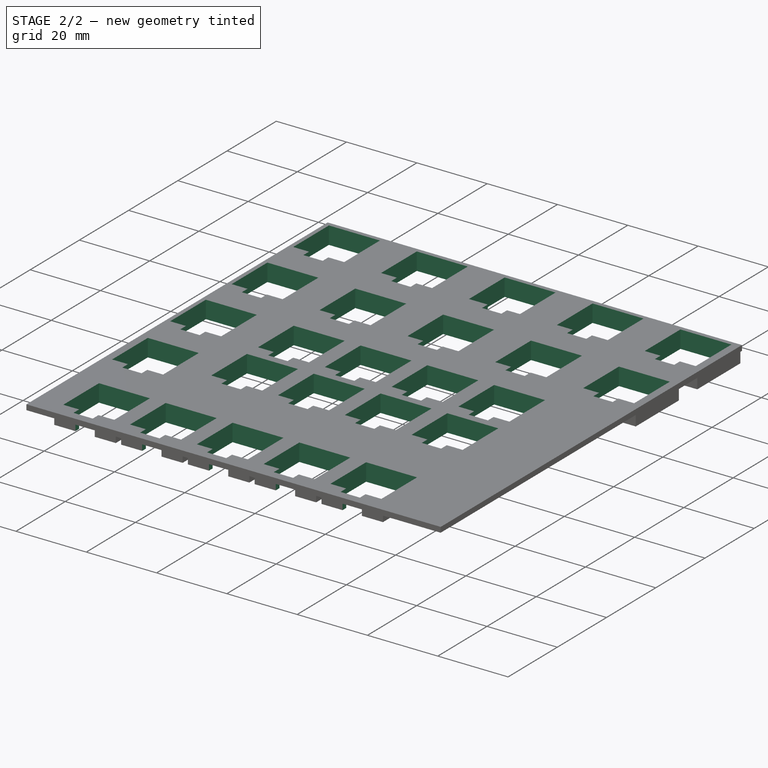
[diagram: stage 2 of 2 — iso view after this stage's code; geometry added in this stage tinted green]
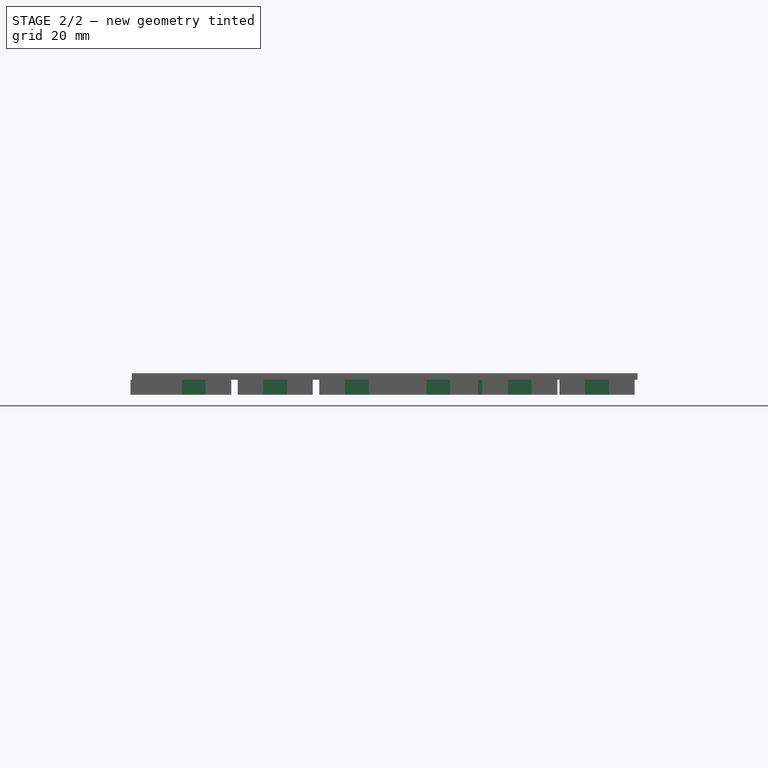
[diagram: stage 2 of 2 — front view after this stage's code; geometry added in this stage tinted green]
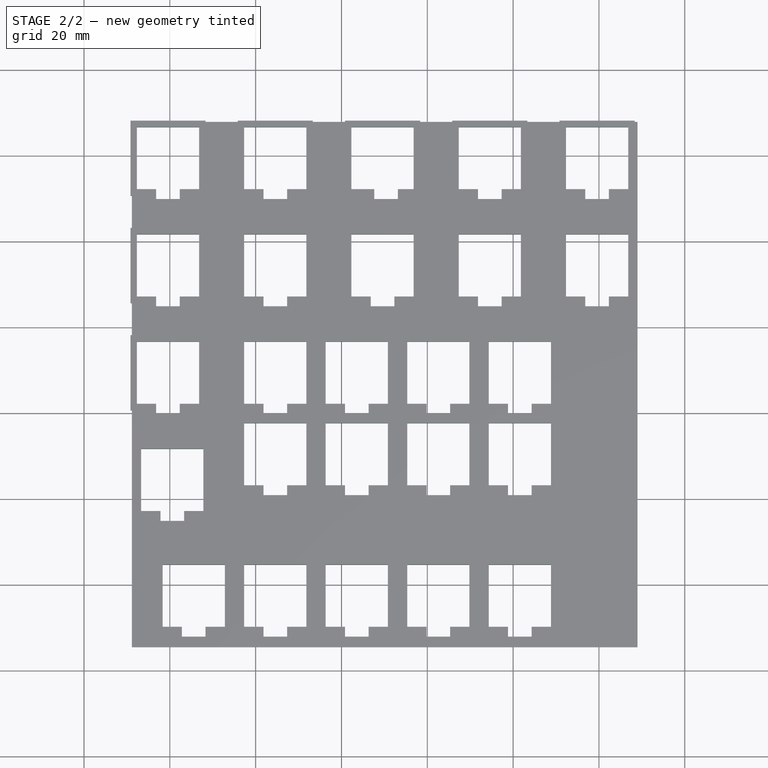
[diagram: stage 2 of 2 — top view after this stage's code; geometry added in this stage tinted green]
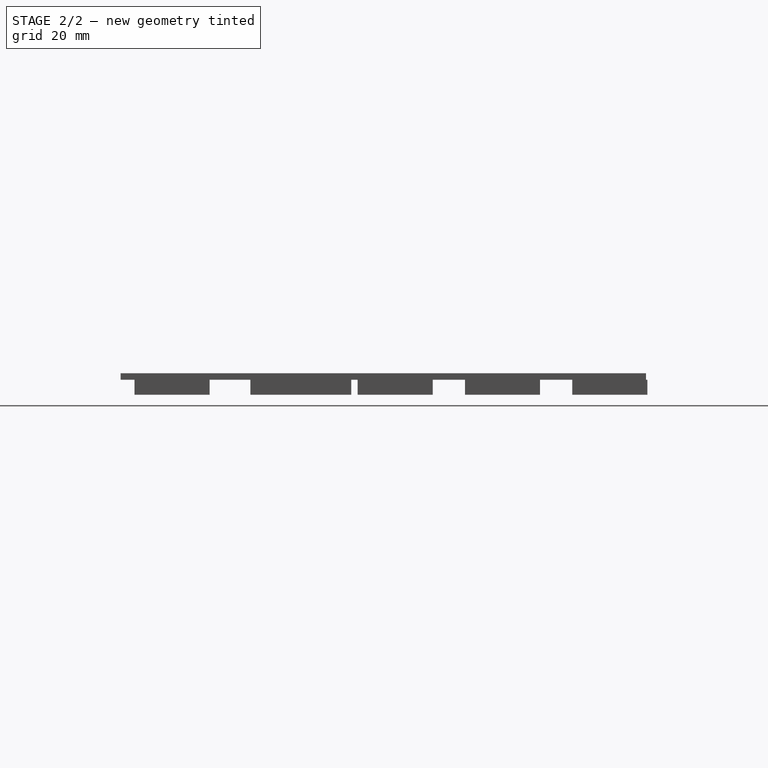
[diagram: stage 2 of 2 — right view after this stage's code; geometry added in this stage tinted green]
FEATURE [PartDesign::Plane] DatumPlane001
  Length = 339.951
  MapMode = 5
  Placement = pos=(0,0,1.5) rot=(0,0,1;0rad)
  ResizeMode = 0
  Support = -> [Pad001]
  Width = 225.501
FEATURE [Sketcher::SketchObject] Sketch008  label="key_cut003"
  FullyConstrained = true
  MapMode = 5
  Placement = pos=(0,0,1.5) rot=(0,0,1;0rad)
  Support = -> [DatumPlane001]
  sketch-geometry (125):
    g0: LineSegment StartX=152.32 StartY=-33.32 StartZ=0 EndX=166.82 EndY=-33.32 EndZ=0
    g1: LineSegment StartX=166.82 StartY=-33.32 StartZ=0 EndX=166.82 EndY=-47.82 EndZ=0
    g2: LineSegment StartX=166.82 StartY=-47.82 StartZ=0 EndX=152.32 EndY=-47.82 EndZ=0
    g3: LineSegment StartX=152.32 StartY=-47.82 StartZ=0 EndX=152.32 EndY=-33.32 EndZ=0
    g4: GeomPoint X=159.57 Y=-40.57 Z=0
    g5: LineSegment StartX=177.32 StartY=-33.32 StartZ=0 EndX=191.82 EndY=-33.32 EndZ=0
    g6: LineSegment StartX=191.82 StartY=-33.32 StartZ=0 EndX=191.82 EndY=-47.82 EndZ=0
    g7: LineSegment StartX=191.82 StartY=-47.82 StartZ=0 EndX=177.32 EndY=-47.82 EndZ=0
    g8: LineSegment StartX=177.32 StartY=-47.82 StartZ=0 EndX=177.32 EndY=-33.32 EndZ=0
    g9: GeomPoint X=184.57 Y=-40.57 Z=0
    g10: LineSegment StartX=202.32 StartY=-33.32 StartZ=0 EndX=216.82 EndY=-33.32 EndZ=0
    g11: LineSegment StartX=216.82 StartY=-33.32 StartZ=0 EndX=216.82 EndY=-47.82 EndZ=0
    g12: LineSegment StartX=216.82 StartY=-47.82 StartZ=0 EndX=202.32 EndY=-47.82 EndZ=0
    g13: LineSegment StartX=202.32 StartY=-47.82 StartZ=0 EndX=202.32 EndY=-33.32 EndZ=0
    g14: GeomPoint X=209.57 Y=-40.57 Z=0
    g15: LineSegment StartX=227.32 StartY=-33.32 StartZ=0 EndX=241.82 EndY=-33.32 EndZ=0
    g16: LineSegment StartX=241.82 StartY=-33.32 StartZ=0 EndX=241.82 EndY=-47.82 EndZ=0
    g17: LineSegment StartX=241.82 StartY=-47.82 StartZ=0 EndX=227.32 EndY=-47.82 EndZ=0
    g18: LineSegment StartX=227.32 StartY=-47.82 StartZ=0 EndX=227.32 EndY=-33.32 EndZ=0
    g19: GeomPoint X=234.57 Y=-40.57 Z=0
    g20: LineSegment StartX=252.32 StartY=-33.32 StartZ=0 EndX=266.82 EndY=-33.32 EndZ=0
    g21: LineSegment StartX=266.82 StartY=-33.32 StartZ=0 EndX=266.82 EndY=-47.82 EndZ=0
    g22: LineSegment StartX=266.82 StartY=-47.82 StartZ=0 EndX=252.32 EndY=-47.82 EndZ=0
    g23: LineSegment StartX=252.32 StartY=-47.82 StartZ=0 EndX=252.32 EndY=-33.32 EndZ=0
    g24: GeomPoint X=259.57 Y=-40.57 Z=0
    g25: LineSegment StartX=152.32 StartY=-58.32 StartZ=0 EndX=166.82 EndY=-58.32 EndZ=0
    g26: LineSegment StartX=166.82 StartY=-58.32 StartZ=0 EndX=166.82 EndY=-72.82 EndZ=0
    g27: LineSegment StartX=166.82 StartY=-72.82 StartZ=0 EndX=152.32 EndY=-72.82 EndZ=0
    g28: LineSegment StartX=152.32 StartY=-72.82 StartZ=0 EndX=152.32 EndY=-58.32 EndZ=0
    g29: GeomPoint X=159.57 Y=-65.57 Z=0
    g30: LineSegment StartX=177.32 StartY=-58.32 StartZ=0 EndX=191.82 EndY=-58.32 EndZ=0
    g31: LineSegment StartX=191.82 StartY=-58.32 StartZ=0 EndX=191.82 EndY=-72.82 EndZ=0
    g32: LineSegment StartX=191.82 StartY=-72.82 StartZ=0 EndX=177.32 EndY=-72.82 EndZ=0
    g33: LineSegment StartX=177.32 StartY=-72.82 StartZ=0 EndX=177.32 EndY=-58.32 EndZ=0
    g34: GeomPoint X=184.57 Y=-65.57 Z=0
    g35: LineSegment StartX=202.32 StartY=-58.32 StartZ=0 EndX=216.82 EndY=-58.32 EndZ=0
    g36: LineSegment StartX=216.82 StartY=-58.32 StartZ=0 EndX=216.82 EndY=-72.82 EndZ=0
    g37: LineSegment StartX=216.82 StartY=-72.82 StartZ=0 EndX=202.32 EndY=-72.82 EndZ=0
    g38: LineSegment StartX=202.32 StartY=-72.82 StartZ=0 EndX=202.32 EndY=-58.32 EndZ=0
    g39: GeomPoint X=209.57 Y=-65.57 Z=0
    g40: LineSegment StartX=227.32 StartY=-58.32 StartZ=0 EndX=241.82 EndY=-58.32 EndZ=0
    g41: LineSegment StartX=241.82 StartY=-58.32 StartZ=0 EndX=241.82 EndY=-72.82 EndZ=0
    g42: LineSegment StartX=241.82 StartY=-72.82 StartZ=0 EndX=227.32 EndY=-72.82 EndZ=0
    g43: LineSegment StartX=227.32 StartY=-72.82 StartZ=0 EndX=227.32 EndY=-58.32 EndZ=0
    g44: GeomPoint X=234.57 Y=-65.57 Z=0
    g45: LineSegment StartX=252.32 StartY=-58.32 StartZ=0 EndX=266.82 EndY=-58.32 EndZ=0
    g46: LineSegment StartX=266.82 StartY=-58.32 StartZ=0 EndX=266.82 EndY=-72.82 EndZ=0
    g47: LineSegment StartX=266.82 StartY=-72.82 StartZ=0 EndX=252.32 EndY=-72.82 EndZ=0
    g48: LineSegment StartX=252.32 StartY=-72.82 StartZ=0 EndX=252.32 EndY=-58.32 EndZ=0
    g49: GeomPoint X=259.57 Y=-65.57 Z=0
    g50: LineSegment StartX=152.32 StartY=-83.32 StartZ=0 EndX=166.82 EndY=-83.32 EndZ=0
    g51: LineSegment StartX=166.82 StartY=-83.32 StartZ=0 EndX=166.82 EndY=-97.82 EndZ=0
    g52: LineSegment StartX=166.82 StartY=-97.82 StartZ=0 EndX=152.32 EndY=-97.82 EndZ=0
    g53: LineSegment StartX=152.32 StartY=-97.82 StartZ=0 EndX=152.32 EndY=-83.32 EndZ=0
    g54: GeomPoint X=159.57 Y=-90.57 Z=0
    g55: LineSegment StartX=177.32 StartY=-83.32 StartZ=0 EndX=191.82 EndY=-83.32 EndZ=0
    g56: LineSegment StartX=191.82 StartY=-83.32 StartZ=0 EndX=191.82 EndY=-97.82 EndZ=0
    g57: LineSegment StartX=191.82 StartY=-97.82 StartZ=0 EndX=177.32 EndY=-97.82 EndZ=0
    g58: LineSegment StartX=177.32 StartY=-97.82 StartZ=0 EndX=177.32 EndY=-83.32 EndZ=0
    g59: GeomPoint X=184.57 Y=-90.57 Z=0
    g60: LineSegment StartX=196.32 StartY=-83.32 StartZ=0 EndX=210.82 EndY=-83.32 EndZ=0
    g61: LineSegment StartX=210.82 StartY=-83.32 StartZ=0 EndX=210.82 EndY=-97.82 EndZ=0
    g62: LineSegment StartX=210.82 StartY=-97.82 StartZ=0 EndX=196.32 EndY=-97.82 EndZ=0
    g63: LineSegment StartX=196.32 StartY=-97.82 StartZ=0 EndX=196.32 EndY=-83.32 EndZ=0
    g64: GeomPoint X=203.57 Y=-90.57 Z=0
    g65: LineSegment StartX=215.32 StartY=-83.32 StartZ=0 EndX=229.82 EndY=-83.32 EndZ=0
    g66: LineSegment StartX=229.82 StartY=-83.32 StartZ=0 EndX=229.82 EndY=-97.82 EndZ=0
    g67: LineSegment StartX=229.82 StartY=-97.82 StartZ=0 EndX=215.32 EndY=-97.82 EndZ=0
    g68: LineSegment StartX=215.32 StartY=-97.82 StartZ=0 EndX=215.32 EndY=-83.32 EndZ=0
    g69: GeomPoint X=222.57 Y=-90.57 Z=0
    g70: LineSegment StartX=234.32 StartY=-83.32 StartZ=0 EndX=248.82 EndY=-83.32 EndZ=0
    g71: LineSegment StartX=248.82 StartY=-83.32 StartZ=0 EndX=248.82 EndY=-97.82 EndZ=0
    g72: LineSegment StartX=248.82 StartY=-97.82 StartZ=0 EndX=234.32 EndY=-97.82 EndZ=0
    g73: LineSegment StartX=234.32 StartY=-97.82 StartZ=0 EndX=234.32 EndY=-83.32 EndZ=0
    g74: GeomPoint X=241.57 Y=-90.57 Z=0
    g75: LineSegment StartX=153.32 StartY=-108.32 StartZ=0 EndX=167.82 EndY=-108.32 EndZ=0
    g76: LineSegment StartX=167.82 StartY=-108.32 StartZ=0 EndX=167.82 EndY=-122.82 EndZ=0
    g77: LineSegment StartX=167.82 StartY=-122.82 StartZ=0 EndX=153.32 EndY=-122.82 EndZ=0
    g78: LineSegment StartX=153.32 StartY=-122.82 StartZ=0 EndX=153.32 EndY=-108.32 EndZ=0
    g79: GeomPoint X=160.57 Y=-115.57 Z=0
    g80: LineSegment StartX=177.32 StartY=-102.32 StartZ=0 EndX=191.82 EndY=-102.32 EndZ=0
    g81: LineSegment StartX=191.82 StartY=-102.32 StartZ=0 EndX=191.82 EndY=-116.82 EndZ=0
    g82: LineSegment StartX=191.82 StartY=-116.82 StartZ=0 EndX=177.32 EndY=-116.82 EndZ=0
    g83: LineSegment StartX=177.32 StartY=-116.82 StartZ=0 EndX=177.32 EndY=-102.32 EndZ=0
    g84: GeomPoint X=184.57 Y=-109.57 Z=0
    g85: LineSegment StartX=196.32 StartY=-102.32 StartZ=0 EndX=210.82 EndY=-102.32 EndZ=0
    g86: LineSegment StartX=210.82 StartY=-102.32 StartZ=0 EndX=210.82 EndY=-116.82 EndZ=0
    g87: LineSegment StartX=210.82 StartY=-116.82 StartZ=0 EndX=196.32 EndY=-116.82 EndZ=0
    g88: LineSegment StartX=196.32 StartY=-116.82 StartZ=0 EndX=196.32 EndY=-102.32 EndZ=0
    g89: GeomPoint X=203.57 Y=-109.57 Z=0
    g90: LineSegment StartX=215.32 StartY=-102.32 StartZ=0 EndX=229.82 EndY=-102.32 EndZ=0
    g91: LineSegment StartX=229.82 StartY=-102.32 StartZ=0 EndX=229.82 EndY=-116.82 EndZ=0
    g92: LineSegment StartX=229.82 StartY=-116.82 StartZ=0 EndX=215.32 EndY=-116.82 EndZ=0
    g93: LineSegment StartX=215.32 StartY=-116.82 StartZ=0 EndX=215.32 EndY=-102.32 EndZ=0
    g94: GeomPoint X=222.57 Y=-109.57 Z=0
    g95: LineSegment StartX=234.32 StartY=-102.32 StartZ=0 EndX=248.82 EndY=-102.32 EndZ=0
    g96: LineSegment StartX=248.82 StartY=-102.32 StartZ=0 EndX=248.82 EndY=-116.82 EndZ=0
    g97: LineSegment StartX=248.82 StartY=-116.82 StartZ=0 EndX=234.32 EndY=-116.82 EndZ=0
    g98: LineSegment StartX=234.32 StartY=-116.82 StartZ=0 EndX=234.32 EndY=-102.32 EndZ=0
    g99: GeomPoint X=241.57 Y=-109.57 Z=0
    g100: LineSegment StartX=158.32 StartY=-135.32 StartZ=0 EndX=172.82 EndY=-135.32 EndZ=0
    g101: LineSegment StartX=172.82 StartY=-135.32 StartZ=0 EndX=172.82 EndY=-149.82 EndZ=0
    g102: LineSegment StartX=172.82 StartY=-149.82 StartZ=0 EndX=158.32 EndY=-149.82 EndZ=0
    g103: LineSegment StartX=158.32 StartY=-149.82 StartZ=0 EndX=158.32 EndY=-135.32 EndZ=0
    g104: GeomPoint X=165.57 Y=-142.57 Z=0
    g105: LineSegment StartX=177.32 StartY=-135.32 StartZ=0 EndX=191.82 EndY=-135.32 EndZ=0
    g106: LineSegment StartX=191.82 StartY=-135.32 StartZ=0 EndX=191.82 EndY=-149.82 EndZ=0
    g107: LineSegment StartX=191.82 StartY=-149.82 StartZ=0 EndX=177.32 EndY=-149.82 EndZ=0
    g108: LineSegment StartX=177.32 StartY=-149.82 StartZ=0 EndX=177.32 EndY=-135.32 EndZ=0
    g109: GeomPoint X=184.57 Y=-142.57 Z=0
    g110: LineSegment StartX=196.32 StartY=-135.32 StartZ=0 EndX=210.82 EndY=-135.32 EndZ=0
    g111: LineSegment StartX=210.82 StartY=-135.32 StartZ=0 EndX=210.82 EndY=-149.82 EndZ=0
    g112: LineSegment StartX=210.82 StartY=-149.82 StartZ=0 EndX=196.32 EndY=-149.82 EndZ=0
    g113: LineSegment StartX=196.32 StartY=-149.82 StartZ=0 EndX=196.32 EndY=-135.32 EndZ=0
    g114: GeomPoint X=203.57 Y=-142.57 Z=0
    g115: LineSegment StartX=215.32 StartY=-135.32 StartZ=0 EndX=229.82 EndY=-135.32 EndZ=0
    g116: LineSegment StartX=229.82 StartY=-135.32 StartZ=0 EndX=229.82 EndY=-149.82 EndZ=0
    g117: LineSegment StartX=229.82 StartY=-149.82 StartZ=0 EndX=215.32 EndY=-149.82 EndZ=0
    g118: LineSegment StartX=215.32 StartY=-149.82 StartZ=0 EndX=215.32 EndY=-135.32 EndZ=0
    g119: GeomPoint X=222.57 Y=-142.57 Z=0
    g120: LineSegment StartX=234.32 StartY=-135.32 StartZ=0 EndX=248.82 EndY=-135.32 EndZ=0
    g121: LineSegment StartX=248.82 StartY=-135.32 StartZ=0 EndX=248.82 EndY=-149.82 EndZ=0
    g122: LineSegment StartX=248.82 StartY=-149.82 StartZ=0 EndX=234.32 EndY=-149.82 EndZ=0
    g123: LineSegment StartX=234.32 StartY=-149.82 StartZ=0 EndX=234.32 EndY=-135.32 EndZ=0
    g124: GeomPoint X=241.57 Y=-142.57 Z=0
  constraints (325):
    c: Coincident(g0,g1)
    c: Coincident(g1,g2)
    c: Coincident(g2,g3)
    c: Coincident(g3,g0)
    c: Horizontal(g0)
    c: Horizontal(g2)
    c: Vertical(g1)
    c: Vertical(g3)
    c: Symmetric(g0,g2,g4)
    c: Coincident(g5,g6)
    c: Coincident(g6,g7)
    c: Coincident(g7,g8)
    c: Coincident(g8,g5)
    c: Horizontal(g5)
    c: Horizontal(g7)
    c: Vertical(g6)
    c: Vertical(g8)
    c: Symmetric(g5,g7,g9)
    c: Coincident(g10,g11)
    c: Coincident(g11,g12)
    c: Coincident(g12,g13)
    c: Coincident(g13,g10)
    c: Horizontal(g10)
    c: Horizontal(g12)
    c: Vertical(g11)
    c: Vertical(g13)
    c: Symmetric(g10,g12,g14)
    c: Coincident(g15,g16)
    c: Coincident(g16,g17)
    c: Coincident(g17,g18)
    c: Coincident(g18,g15)
    c: Horizontal(g15)
    c: Horizontal(g17)
    c: Vertical(g16)
    c: Vertical(g18)
    c: Symmetric(g15,g17,g19)
    c: Coincident(g20,g21)
    c: Coincident(g21,g22)
    c: Coincident(g22,g23)
    c: Coincident(g23,g20)
    c: Horizontal(g20)
    c: Horizontal(g22)
    c: Vertical(g21)
    c: Vertical(g23)
    c: Symmetric(g20,g22,g24)
    c: Coincident(g25,g26)
    c: Coincident(g26,g27)
    c: Coincident(g27,g28)
    c: Coincident(g28,g25)
    c: Horizontal(g25)
    c: Horizontal(g27)
    c: Vertical(g26)
    c: Vertical(g28)
    c: Symmetric(g25,g27,g29)
    c: Coincident(g30,g31)
    c: Coincident(g31,g32)
    c: Coincident(g32,g33)
    c: Coincident(g33,g30)
    c: Horizontal(g30)
    c: Horizontal(g32)
    c: Vertical(g31)
    c: Vertical(g33)
    c: Symmetric(g30,g32,g34)
    c: Coincident(g35,g36)
    c: Coincident(g36,g37)
    c: Coincident(g37,g38)
    c: Coincident(g38,g35)
    c: Horizontal(g35)
    c: Horizontal(g37)
    c: Vertical(g36)
    c: Vertical(g38)
    c: Symmetric(g35,g37,g39)
    c: Coincident(g40,g41)
    c: Coincident(g41,g42)
    c: Coincident(g42,g43)
    c: Coincident(g43,g40)
    c: Horizontal(g40)
    c: Horizontal(g42)
    c: Vertical(g41)
    c: Vertical(g43)
    c: Symmetric(g40,g42,g44)
    c: Coincident(g45,g46)
    c: Coincident(g46,g47)
    c: Coincident(g47,g48)
    c: Coincident(g48,g45)
    c: Horizontal(g45)
    c: Horizontal(g47)
    c: Vertical(g46)
    c: Vertical(g48)
    c: Symmetric(g45,g47,g49)
    c: Coincident(g50,g51)
    c: Coincident(g51,g52)
    c: Coincident(g52,g53)
    c: Coincident(g53,g50)
    c: Horizontal(g50)
    c: Horizontal(g52)
    c: Vertical(g51)
    c: Vertical(g53)
    c: Symmetric(g50,g52,g54)
    c: Coincident(g55,g56)
    c: Coincident(g56,g57)
    c: Coincident(g57,g58)
    c: Coincident(g58,g55)
    c: Horizontal(g55)
    c: Horizontal(g57)
    c: Vertical(g56)
    c: Vertical(g58)
    c: Symmetric(g55,g57,g59)
    c: Coincident(g60,g61)
    c: Coincident(g61,g62)
    c: Coincident(g62,g63)
    c: Coincident(g63,g60)
    c: Horizontal(g60)
    c: Horizontal(g62)
    c: Vertical(g61)
    c: Vertical(g63)
    c: Symmetric(g60,g62,g64)
    c: Coincident(g65,g66)
    c: Coincident(g66,g67)
    c: Coincident(g67,g68)
    c: Coincident(g68,g65)
    c: Horizontal(g65)
    c: Horizontal(g67)
    c: Vertical(g66)
    c: Vertical(g68)
    c: Symmetric(g65,g67,g69)
    c: Coincident(g70,g71)
    c: Coincident(g71,g72)
    c: Coincident(g72,g73)
    c: Coincident(g73,g70)
    c: Horizontal(g70)
    c: Horizontal(g72)
    c: Vertical(g71)
    c: Vertical(g73)
    c: Symmetric(g70,g72,g74)
    c: Coincident(g75,g76)
    c: Coincident(g76,g77)
    c: Coincident(g77,g78)
    c: Coincident(g78,g75)
    c: Horizontal(g75)
    c: Horizontal(g77)
    c: Vertical(g76)
    c: Vertical(g78)
    c: Symmetric(g75,g77,g79)
    c: Coincident(g80,g81)
    c: Coincident(g81,g82)
    c: Coincident(g82,g83)
    c: Coincident(g83,g80)
    c: Horizontal(g80)
    c: Horizontal(g82)
    c: Vertical(g81)
    c: Vertical(g83)
    c: Symmetric(g80,g82,g84)
    c: Coincident(g85,g86)
    c: Coincident(g86,g87)
    c: Coincident(g87,g88)
    c: Coincident(g88,g85)
    c: Horizontal(g85)
    c: Horizontal(g87)
    c: Vertical(g86)
    c: Vertical(g88)
    c: Symmetric(g85,g87,g89)
    c: Coincident(g90,g91)
    c: Coincident(g91,g92)
    c: Coincident(g92,g93)
    c: Coincident(g93,g90)
    c: Horizontal(g90)
    c: Horizontal(g92)
    c: Vertical(g91)
    c: Vertical(g93)
    c: Symmetric(g90,g92,g94)
    c: Coincident(g95,g96)
    c: Coincident(g96,g97)
    c: Coincident(g97,g98)
    c: Coincident(g98,g95)
    c: Horizontal(g95)
    c: Horizontal(g97)
    c: Vertical(g96)
    c: Vertical(g98)
    c: Symmetric(g95,g97,g99)
    c: Coincident(g100,g101)
    c: Coincident(g101,g102)
    c: Coincident(g102,g103)
    c: Coincident(g103,g100)
    c: Horizontal(g100)
    c: Horizontal(g102)
    c: Vertical(g101)
    c: Vertical(g103)
    c: DistanceY(g101,g101) = 14.5
    c: Symmetric(g100,g102,g104)
    c: Coincident(g105,g106)
    c: Coincident(g106,g107)
    c: Coincident(g107,g108)
    c: Coincident(g108,g105)
    c: Horizontal(g105)
    c: Horizontal(g107)
    c: Vertical(g106)
    c: Vertical(g108)
    c: Symmetric(g105,g107,g109)
    c: Coincident(g110,g111)
    c: Coincident(g111,g112)
    c: Coincident(g112,g113)
    c: Coincident(g113,g110)
    c: Horizontal(g110)
    c: Horizontal(g112)
    c: Vertical(g111)
    c: Vertical(g113)
    c: Symmetric(g110,g112,g114)
    c: Coincident(g115,g116)
    c: Coincident(g116,g117)
    c: Coincident(g117,g118)
    c: Coincident(g118,g115)
    c: Horizontal(g115)
    c: Horizontal(g117)
    c: Vertical(g116)
    c: Vertical(g118)
    c: Symmetric(g115,g117,g119)
    c: Coincident(g120,g121)
    c: Coincident(g121,g122)
    c: Coincident(g122,g123)
    c: Coincident(g123,g120)
    c: Horizontal(g120)
    c: Horizontal(g122)
    c: Vertical(g121)
    c: Vertical(g123)
    c: Symmetric(g120,g122,g124)
    c: DistanceX(g-1,g54) = 159.57
    c: DistanceX(g-1,g29) = 159.57
    c: DistanceX(g-1,g4) = 159.57
    c: DistanceX(g-1,g79) = 160.57
    c: DistanceX(g-1,g104) = 165.57
    c: DistanceX(g-1,g9) = 184.57
    c: DistanceX(g-1,g34) = 184.57
    c: DistanceX(g-1,g59) = 184.57
    c: DistanceX(g-1,g84) = 184.57
    c: DistanceY(g4,g-1) = 40.57
    c: DistanceY(g29,g-1) = 65.57
    c: DistanceX(g-1,g109) = 184.57
    c: DistanceX(g-1,g114) = 203.57
    c: DistanceX(g-1,g119) = 222.57
    c: DistanceX(g-1,g124) = 241.57
    c: DistanceX(g-1,g14) = 209.57
    c: DistanceX(g-1,g39) = 209.57
    c: DistanceX(g-1,g19) = 234.57
    c: DistanceX(g-1,g24) = 259.57
    c: DistanceX(g-1,g44) = 234.57
    c: DistanceX(g-1,g49) = 259.57
    c: DistanceX(g-1,g64) = 203.57
    c: DistanceX(g-1,g69) = 222.57
    c: DistanceX(g-1,g74) = 241.57
    c: DistanceX(g-1,g89) = 203.57
    c: DistanceX(g-1,g94) = 222.57
    c: DistanceX(g-1,g99) = 241.57
    c: DistanceY(g9,g-1) = 40.57
    c: DistanceY(g14,g-1) = 40.57
    c: DistanceY(g19,g-1) = 40.57
    c: DistanceY(g24,g-1) = 40.57
    c: DistanceY(g34,g-1) = 65.57
    c: DistanceY(g39,g-1) = 65.57
    c: DistanceY(g44,g-1) = 65.57
    c: DistanceY(g49,g-1) = 65.57
    c: DistanceY(g54,g-1) = 90.57
    c: DistanceY(g59,g-1) = 90.57
    c: DistanceY(g64,g-1) = 90.57
    c: DistanceY(g69,g-1) = 90.57
    c: DistanceY(g74,g-1) = 90.57
    c: DistanceY(g79,g-1) = 115.57
    c: DistanceY(g84,g-1) = 109.57
    c: DistanceY(g89,g-1) = 109.57
    c: DistanceY(g94,g-1) = 109.57
    c: DistanceY(g99,g-1) = 109.57
    c: DistanceY(g104,g-1) = 142.57
    c: DistanceY(g109,g-1) = 142.57
    c: DistanceY(g114,g-1) = 142.57
    c: DistanceY(g119,g-1) = 142.57
    c: DistanceY(g124,g-1) = 142.57
    c: Equal(g103,g100)
    c: Equal(g103,g108)
    c: Equal(g108,g105)
    c: Equal(g105,g113)
    c: Equal(g113,g110)
    c: Equal(g110,g118)
    c: Equal(g118,g115)
    c: Equal(g115,g123)
    c: Equal(g123,g120)
    c: Equal(g103,g78)
    c: Equal(g78,g75)
    c: Equal(g75,g83)
    c: Equal(g83,g80)
    c: Equal(g80,g88)
    c: Equal(g88,g85)
    c: Equal(g85,g93)
    c: Equal(g93,g90)
    c: Equal(g90,g98)
    c: Equal(g98,g95)
    c: Equal(g95,g53)
    c: Equal(g53,g50)
    c: Equal(g50,g58)
    c: Equal(g58,g55)
    c: Equal(g55,g63)
    c: Equal(g63,g60)
    c: Equal(g60,g68)
    c: Equal(g68,g65)
    c: Equal(g65,g73)
    c: Equal(g73,g70)
    c: Equal(g70,g28)
    c: Equal(g28,g25)
    c: Equal(g25,g33)
    c: Equal(g33,g30)
    c: Equal(g30,g38)
    c: Equal(g38,g35)
    c: Equal(g35,g43)
    c: Equal(g43,g40)
    c: Equal(g40,g48)
    c: Equal(g48,g45)
    c: Equal(g103,g3)
    c: Equal(g3,g0)
    c: Equal(g0,g8)
    c: Equal(g8,g5)
    c: Equal(g5,g13)
    c: Equal(g13,g10)
    c: Equal(g10,g18)
    c: Equal(g18,g15)
    c: Equal(g15,g23)
    c: Equal(g23,g20)
FEATURE [Sketcher::SketchObject] Sketch010  label="led_cut002"
  FullyConstrained = true
  MapMode = 5
  Placement = pos=(0,0,1.5) rot=(0,0,1;0rad)
  Support = -> [DatumPlane001]
  sketch-geometry (125):
    g0: LineSegment StartX=156.82 StartY=-44.62 StartZ=0 EndX=162.32 EndY=-44.62 EndZ=0
    g1: LineSegment StartX=162.32 StartY=-44.62 StartZ=0 EndX=162.32 EndY=-50.12 EndZ=0
    g2: LineSegment StartX=162.32 StartY=-50.12 StartZ=0 EndX=156.82 EndY=-50.12 EndZ=0
    g3: LineSegment StartX=156.82 StartY=-50.12 StartZ=0 EndX=156.82 EndY=-44.62 EndZ=0
    g4: GeomPoint X=159.57 Y=-47.37 Z=0
    g5: LineSegment StartX=181.82 StartY=-44.62 StartZ=0 EndX=187.32 EndY=-44.62 EndZ=0
    g6: LineSegment StartX=187.32 StartY=-44.62 StartZ=0 EndX=187.32 EndY=-50.12 EndZ=0
    g7: LineSegment StartX=187.32 StartY=-50.12 StartZ=0 EndX=181.82 EndY=-50.12 EndZ=0
    g8: LineSegment StartX=181.82 StartY=-50.12 StartZ=0 EndX=181.82 EndY=-44.62 EndZ=0
    g9: GeomPoint X=184.57 Y=-47.37 Z=0
    g10: LineSegment StartX=207.65 StartY=-44.62 StartZ=0 EndX=213.15 EndY=-44.62 EndZ=0
    g11: LineSegment StartX=213.15 StartY=-44.62 StartZ=0 EndX=213.15 EndY=-50.12 EndZ=0
    g12: LineSegment StartX=213.15 StartY=-50.12 StartZ=0 EndX=207.65 EndY=-50.12 EndZ=0
    g13: LineSegment StartX=207.65 StartY=-50.12 StartZ=0 EndX=207.65 EndY=-44.62 EndZ=0
    g14: GeomPoint X=210.4 Y=-47.37 Z=0
    g15: LineSegment StartX=231.82 StartY=-44.62 StartZ=0 EndX=237.32 EndY=-44.62 EndZ=0
    g16: LineSegment StartX=237.32 StartY=-44.62 StartZ=0 EndX=237.32 EndY=-50.12 EndZ=0
    g17: LineSegment StartX=237.32 StartY=-50.12 StartZ=0 EndX=231.82 EndY=-50.12 EndZ=0
    g18: LineSegment StartX=231.82 StartY=-50.12 StartZ=0 EndX=231.82 EndY=-44.62 EndZ=0
    g19: GeomPoint X=234.57 Y=-47.37 Z=0
    g20: LineSegment StartX=256.82 StartY=-44.62 StartZ=0 EndX=262.32 EndY=-44.62 EndZ=0
    g21: LineSegment StartX=262.32 StartY=-44.62 StartZ=0 EndX=262.32 EndY=-50.12 EndZ=0
    g22: LineSegment StartX=262.32 StartY=-50.12 StartZ=0 EndX=256.82 EndY=-50.12 EndZ=0
    g23: LineSegment StartX=256.82 StartY=-50.12 StartZ=0 EndX=256.82 EndY=-44.62 EndZ=0
    g24: GeomPoint X=259.57 Y=-47.37 Z=0
    g25: LineSegment StartX=156.82 StartY=-69.62 StartZ=0 EndX=162.32 EndY=-69.62 EndZ=0
    g26: LineSegment StartX=162.32 StartY=-69.62 StartZ=0 EndX=162.32 EndY=-75.12 EndZ=0
    g27: LineSegment StartX=162.32 StartY=-75.12 StartZ=0 EndX=156.82 EndY=-75.12 EndZ=0
    g28: LineSegment StartX=156.82 StartY=-75.12 StartZ=0 EndX=156.82 EndY=-69.62 EndZ=0
    g29: GeomPoint X=159.57 Y=-72.37 Z=0
    g30: LineSegment StartX=181.82 StartY=-69.62 StartZ=0 EndX=187.32 EndY=-69.62 EndZ=0
    g31: LineSegment StartX=187.32 StartY=-69.62 StartZ=0 EndX=187.32 EndY=-75.12 EndZ=0
    g32: LineSegment StartX=187.32 StartY=-75.12 StartZ=0 EndX=181.82 EndY=-75.12 EndZ=0
    g33: LineSegment StartX=181.82 StartY=-75.12 StartZ=0 EndX=181.82 EndY=-69.62 EndZ=0
    g34: GeomPoint X=184.57 Y=-72.37 Z=0
    g35: LineSegment StartX=206.82 StartY=-69.62 StartZ=0 EndX=212.32 EndY=-69.62 EndZ=0
    g36: LineSegment StartX=212.32 StartY=-69.62 StartZ=0 EndX=212.32 EndY=-75.12 EndZ=0
    g37: LineSegment StartX=212.32 StartY=-75.12 StartZ=0 EndX=206.82 EndY=-75.12 EndZ=0
    g38: LineSegment StartX=206.82 StartY=-75.12 StartZ=0 EndX=206.82 EndY=-69.62 EndZ=0
    g39: GeomPoint X=209.57 Y=-72.37 Z=0
    g40: LineSegment StartX=231.82 StartY=-69.62 StartZ=0 EndX=237.32 EndY=-69.62 EndZ=0
    g41: LineSegment StartX=237.32 StartY=-69.62 StartZ=0 EndX=237.32 EndY=-75.12 EndZ=0
    g42: LineSegment StartX=237.32 StartY=-75.12 StartZ=0 EndX=231.82 EndY=-75.12 EndZ=0
    g43: LineSegment StartX=231.82 StartY=-75.12 StartZ=0 EndX=231.82 EndY=-69.62 EndZ=0
    g44: GeomPoint X=234.57 Y=-72.37 Z=0
    g45: LineSegment StartX=256.82 StartY=-69.62 StartZ=0 EndX=262.32 EndY=-69.62 EndZ=0
    g46: LineSegment StartX=262.32 StartY=-69.62 StartZ=0 EndX=262.32 EndY=-75.12 EndZ=0
    g47: LineSegment StartX=262.32 StartY=-75.12 StartZ=0 EndX=256.82 EndY=-75.12 EndZ=0
    g48: LineSegment StartX=256.82 StartY=-75.12 StartZ=0 EndX=256.82 EndY=-69.62 EndZ=0
    g49: GeomPoint X=259.57 Y=-72.37 Z=0
    g50: LineSegment StartX=156.82 StartY=-94.62 StartZ=0 EndX=162.32 EndY=-94.62 EndZ=0
    g51: LineSegment StartX=162.32 StartY=-94.62 StartZ=0 EndX=162.32 EndY=-100.12 EndZ=0
    g52: LineSegment StartX=162.32 StartY=-100.12 StartZ=0 EndX=156.82 EndY=-100.12 EndZ=0
    g53: LineSegment StartX=156.82 StartY=-100.12 StartZ=0 EndX=156.82 EndY=-94.62 EndZ=0
    g54: GeomPoint X=159.57 Y=-97.37 Z=0
    g55: LineSegment StartX=181.82 StartY=-94.62 StartZ=0 EndX=187.32 EndY=-94.62 EndZ=0
    g56: LineSegment StartX=187.32 StartY=-94.62 StartZ=0 EndX=187.32 EndY=-100.12 EndZ=0
    g57: LineSegment StartX=187.32 StartY=-100.12 StartZ=0 EndX=181.82 EndY=-100.12 EndZ=0
    g58: LineSegment StartX=181.82 StartY=-100.12 StartZ=0 EndX=181.82 EndY=-94.62 EndZ=0
    g59: GeomPoint X=184.57 Y=-97.37 Z=0
    g60: LineSegment StartX=200.82 StartY=-94.62 StartZ=0 EndX=206.32 EndY=-94.62 EndZ=0
    g61: LineSegment StartX=206.32 StartY=-94.62 StartZ=0 EndX=206.32 EndY=-100.12 EndZ=0
    g62: LineSegment StartX=206.32 StartY=-100.12 StartZ=0 EndX=200.82 EndY=-100.12 EndZ=0
    g63: LineSegment StartX=200.82 StartY=-100.12 StartZ=0 EndX=200.82 EndY=-94.62 EndZ=0
    g64: GeomPoint X=203.57 Y=-97.37 Z=0
    g65: LineSegment StartX=219.82 StartY=-94.62 StartZ=0 EndX=225.32 EndY=-94.62 EndZ=0
    g66: LineSegment StartX=225.32 StartY=-94.62 StartZ=0 EndX=225.32 EndY=-100.12 EndZ=0
    g67: LineSegment StartX=225.32 StartY=-100.12 StartZ=0 EndX=219.82 EndY=-100.12 EndZ=0
    g68: LineSegment StartX=219.82 StartY=-100.12 StartZ=0 EndX=219.82 EndY=-94.62 EndZ=0
    g69: GeomPoint X=222.57 Y=-97.37 Z=0
    g70: LineSegment StartX=238.82 StartY=-94.62 StartZ=0 EndX=244.32 EndY=-94.62 EndZ=0
    g71: LineSegment StartX=244.32 StartY=-94.62 StartZ=0 EndX=244.32 EndY=-100.12 EndZ=0
    g72: LineSegment StartX=244.32 StartY=-100.12 StartZ=0 EndX=238.82 EndY=-100.12 EndZ=0
    g73: LineSegment StartX=238.82 StartY=-100.12 StartZ=0 EndX=238.82 EndY=-94.62 EndZ=0
    g74: GeomPoint X=241.57 Y=-97.37 Z=0
    g75: LineSegment StartX=157.82 StartY=-119.62 StartZ=0 EndX=163.32 EndY=-119.62 EndZ=0
    g76: LineSegment StartX=163.32 StartY=-119.62 StartZ=0 EndX=163.32 EndY=-125.12 EndZ=0
    g77: LineSegment StartX=163.32 StartY=-125.12 StartZ=0 EndX=157.82 EndY=-125.12 EndZ=0
    g78: LineSegment StartX=157.82 StartY=-125.12 StartZ=0 EndX=157.82 EndY=-119.62 EndZ=0
    g79: GeomPoint X=160.57 Y=-122.37 Z=0
    g80: LineSegment StartX=181.82 StartY=-113.62 StartZ=0 EndX=187.32 EndY=-113.62 EndZ=0
    g81: LineSegment StartX=187.32 StartY=-113.62 StartZ=0 EndX=187.32 EndY=-119.12 EndZ=0
    g82: LineSegment StartX=187.32 StartY=-119.12 StartZ=0 EndX=181.82 EndY=-119.12 EndZ=0
    g83: LineSegment StartX=181.82 StartY=-119.12 StartZ=0 EndX=181.82 EndY=-113.62 EndZ=0
    g84: GeomPoint X=184.57 Y=-116.37 Z=0
    g85: LineSegment StartX=200.82 StartY=-113.62 StartZ=0 EndX=206.32 EndY=-113.62 EndZ=0
    g86: LineSegment StartX=206.32 StartY=-113.62 StartZ=0 EndX=206.32 EndY=-119.12 EndZ=0
    g87: LineSegment StartX=206.32 StartY=-119.12 StartZ=0 EndX=200.82 EndY=-119.12 EndZ=0
    g88: LineSegment StartX=200.82 StartY=-119.12 StartZ=0 EndX=200.82 EndY=-113.62 EndZ=0
    g89: GeomPoint X=203.57 Y=-116.37 Z=0
    g90: LineSegment StartX=219.82 StartY=-113.62 StartZ=0 EndX=225.32 EndY=-113.62 EndZ=0
    g91: LineSegment StartX=225.32 StartY=-113.62 StartZ=0 EndX=225.32 EndY=-119.12 EndZ=0
    g92: LineSegment StartX=225.32 StartY=-119.12 StartZ=0 EndX=219.82 EndY=-119.12 EndZ=0
    g93: LineSegment StartX=219.82 StartY=-119.12 StartZ=0 EndX=219.82 EndY=-113.62 EndZ=0
    g94: GeomPoint X=222.57 Y=-116.37 Z=0
    g95: LineSegment StartX=238.82 StartY=-113.62 StartZ=0 EndX=244.32 EndY=-113.62 EndZ=0
    g96: LineSegment StartX=244.32 StartY=-113.62 StartZ=0 EndX=244.32 EndY=-119.12 EndZ=0
    g97: LineSegment StartX=244.32 StartY=-119.12 StartZ=0 EndX=238.82 EndY=-119.12 EndZ=0
    g98: LineSegment StartX=238.82 StartY=-119.12 StartZ=0 EndX=238.82 EndY=-113.62 EndZ=0
    g99: GeomPoint X=241.57 Y=-116.37 Z=0
    g100: LineSegment StartX=162.82 StartY=-146.62 StartZ=0 EndX=168.32 EndY=-146.62 EndZ=0
    g101: LineSegment StartX=168.32 StartY=-146.62 StartZ=0 EndX=168.32 EndY=-152.12 EndZ=0
    g102: LineSegment StartX=168.32 StartY=-152.12 StartZ=0 EndX=162.82 EndY=-152.12 EndZ=0
    g103: LineSegment StartX=162.82 StartY=-152.12 StartZ=0 EndX=162.82 EndY=-146.62 EndZ=0
    g104: GeomPoint X=165.57 Y=-149.37 Z=0
    g105: LineSegment StartX=181.82 StartY=-146.62 StartZ=0 EndX=187.32 EndY=-146.62 EndZ=0
    g106: LineSegment StartX=187.32 StartY=-146.62 StartZ=0 EndX=187.32 EndY=-152.12 EndZ=0
    g107: LineSegment StartX=187.32 StartY=-152.12 StartZ=0 EndX=181.82 EndY=-152.12 EndZ=0
    g108: LineSegment StartX=181.82 StartY=-152.12 StartZ=0 EndX=181.82 EndY=-146.62 EndZ=0
    g109: GeomPoint X=184.57 Y=-149.37 Z=0
    g110: LineSegment StartX=200.82 StartY=-146.62 StartZ=0 EndX=206.32 EndY=-146.62 EndZ=0
    g111: LineSegment StartX=206.32 StartY=-146.62 StartZ=0 EndX=206.32 EndY=-152.12 EndZ=0
    g112: LineSegment StartX=206.32 StartY=-152.12 StartZ=0 EndX=200.82 EndY=-152.12 EndZ=0
    g113: LineSegment StartX=200.82 StartY=-152.12 StartZ=0 EndX=200.82 EndY=-146.62 EndZ=0
    g114: GeomPoint X=203.57 Y=-149.37 Z=0
    g115: LineSegment StartX=219.82 StartY=-146.62 StartZ=0 EndX=225.32 EndY=-146.62 EndZ=0
    g116: LineSegment StartX=225.32 StartY=-146.62 StartZ=0 EndX=225.32 EndY=-152.12 EndZ=0
    g117: LineSegment StartX=225.32 StartY=-152.12 StartZ=0 EndX=219.82 EndY=-152.12 EndZ=0
    g118: LineSegment StartX=219.82 StartY=-152.12 StartZ=0 EndX=219.82 EndY=-146.62 EndZ=0
    g119: GeomPoint X=222.57 Y=-149.37 Z=0
    g120: LineSegment StartX=238.82 StartY=-146.62 StartZ=0 EndX=244.32 EndY=-146.62 EndZ=0
    g121: LineSegment StartX=244.32 StartY=-146.62 StartZ=0 EndX=244.32 EndY=-152.12 EndZ=0
    g122: LineSegment StartX=244.32 StartY=-152.12 StartZ=0 EndX=238.82 EndY=-152.12 EndZ=0
    g123: LineSegment StartX=238.82 StartY=-152.12 StartZ=0 EndX=238.82 EndY=-146.62 EndZ=0
    g124: GeomPoint X=241.57 Y=-149.37 Z=0
  constraints (325):
    c: Coincident(g0,g1)
    c: Coincident(g1,g2)
    c: Coincident(g2,g3)
    c: Coincident(g3,g0)
    c: Horizontal(g0)
    c: Horizontal(g2)
    c: Vertical(g1)
    c: Vertical(g3)
    c: DistanceY(g1,g1) = 5.5
    c: DistanceX(g2,g2) = 5.5
    c: Symmetric(g0,g2,g4)
    c: Coincident(g5,g6)
    c: Coincident(g6,g7)
    c: Coincident(g7,g8)
    c: Coincident(g8,g5)
    c: Horizontal(g5)
    c: Horizontal(g7)
    c: Vertical(g6)
    c: Vertical(g8)
    c: DistanceY(g6,g6) = 5.5
    c: DistanceX(g7,g7) = 5.5
    c: Symmetric(g5,g7,g9)
    c: Coincident(g10,g11)
    c: Coincident(g11,g12)
    c: Coincident(g12,g13)
    c: Coincident(g13,g10)
    c: Horizontal(g10)
    c: Horizontal(g12)
    c: Vertical(g11)
    c: Vertical(g13)
    c: DistanceY(g11,g11) = 5.5
    c: DistanceX(g12,g12) = 5.5
    c: Symmetric(g10,g12,g14)
    c: Coincident(g15,g16)
    c: Coincident(g16,g17)
    c: Coincident(g17,g18)
    c: Coincident(g18,g15)
    c: Horizontal(g15)
    c: Horizontal(g17)
    c: Vertical(g16)
    c: Vertical(g18)
    c: DistanceY(g16,g16) = 5.5
    c: DistanceX(g17,g17) = 5.5
    c: Symmetric(g15,g17,g19)
    c: Coincident(g20,g21)
    c: Coincident(g21,g22)
    c: Coincident(g22,g23)
    c: Coincident(g23,g20)
    c: Horizontal(g20)
    c: Horizontal(g22)
    c: Vertical(g21)
    c: Vertical(g23)
    c: DistanceY(g21,g21) = 5.5
    c: DistanceX(g22,g22) = 5.5
    c: Symmetric(g20,g22,g24)
    c: Coincident(g25,g26)
    c: Coincident(g26,g27)
    c: Coincident(g27,g28)
    c: Coincident(g28,g25)
    c: Horizontal(g25)
    c: Horizontal(g27)
    c: Vertical(g26)
    c: Vertical(g28)
    c: DistanceY(g26,g26) = 5.5
    c: DistanceX(g27,g27) = 5.5
    c: Symmetric(g25,g27,g29)
    c: Coincident(g30,g31)
    c: Coincident(g31,g32)
    c: Coincident(g32,g33)
    c: Coincident(g33,g30)
    c: Horizontal(g30)
    c: Horizontal(g32)
    c: Vertical(g31)
    c: Vertical(g33)
    c: DistanceY(g31,g31) = 5.5
    c: DistanceX(g32,g32) = 5.5
    c: Symmetric(g30,g32,g34)
    c: Coincident(g35,g36)
    c: Coincident(g36,g37)
    c: Coincident(g37,g38)
    c: Coincident(g38,g35)
    c: Horizontal(g35)
    c: Horizontal(g37)
    c: Vertical(g36)
    c: Vertical(g38)
    c: DistanceY(g36,g36) = 5.5
    c: DistanceX(g37,g37) = 5.5
    c: Symmetric(g35,g37,g39)
    c: Coincident(g40,g41)
    c: Coincident(g41,g42)
    c: Coincident(g42,g43)
    c: Coincident(g43,g40)
    c: Horizontal(g40)
    c: Horizontal(g42)
    c: Vertical(g41)
    c: Vertical(g43)
    c: DistanceY(g41,g41) = 5.5
    c: DistanceX(g42,g42) = 5.5
    c: Symmetric(g40,g42,g44)
    c: Coincident(g45,g46)
    c: Coincident(g46,g47)
    c: Coincident(g47,g48)
    c: Coincident(g48,g45)
    c: Horizontal(g45)
    c: Horizontal(g47)
    c: Vertical(g46)
    c: Vertical(g48)
    c: DistanceY(g46,g46) = 5.5
    c: DistanceX(g47,g47) = 5.5
    c: Symmetric(g45,g47,g49)
    c: Coincident(g50,g51)
    c: Coincident(g51,g52)
    c: Coincident(g52,g53)
    c: Coincident(g53,g50)
    c: Horizontal(g50)
    c: Horizontal(g52)
    c: Vertical(g51)
    c: Vertical(g53)
    c: DistanceY(g51,g51) = 5.5
    c: DistanceX(g52,g52) = 5.5
    c: Symmetric(g50,g52,g54)
    c: Coincident(g55,g56)
    c: Coincident(g56,g57)
    c: Coincident(g57,g58)
    c: Coincident(g58,g55)
    c: Horizontal(g55)
    c: Horizontal(g57)
    c: Vertical(g56)
    c: Vertical(g58)
    c: DistanceY(g56,g56) = 5.5
    c: DistanceX(g57,g57) = 5.5
    c: Symmetric(g55,g57,g59)
    c: Coincident(g60,g61)
    c: Coincident(g61,g62)
    c: Coincident(g62,g63)
    c: Coincident(g63,g60)
    c: Horizontal(g60)
    c: Horizontal(g62)
    c: Vertical(g61)
    c: Vertical(g63)
    c: DistanceY(g61,g61) = 5.5
    c: DistanceX(g62,g62) = 5.5
    c: Symmetric(g60,g62,g64)
    c: Coincident(g65,g66)
    c: Coincident(g66,g67)
    c: Coincident(g67,g68)
    c: Coincident(g68,g65)
    c: Horizontal(g65)
    c: Horizontal(g67)
    c: Vertical(g66)
    c: Vertical(g68)
    c: DistanceY(g66,g66) = 5.5
    c: DistanceX(g67,g67) = 5.5
    c: Symmetric(g65,g67,g69)
    c: Coincident(g70,g71)
    c: Coincident(g71,g72)
    c: Coincident(g72,g73)
    c: Coincident(g73,g70)
    c: Horizontal(g70)
    c: Horizontal(g72)
    c: Vertical(g71)
    c: Vertical(g73)
    c: DistanceY(g71,g71) = 5.5
    c: DistanceX(g72,g72) = 5.5
    c: Symmetric(g70,g72,g74)
    c: Coincident(g75,g76)
    c: Coincident(g76,g77)
    c: Coincident(g77,g78)
    c: Coincident(g78,g75)
    c: Horizontal(g75)
    c: Horizontal(g77)
    c: Vertical(g76)
    c: Vertical(g78)
    c: DistanceY(g76,g76) = 5.5
    c: DistanceX(g77,g77) = 5.5
    c: Symmetric(g75,g77,g79)
    c: Coincident(g80,g81)
    c: Coincident(g81,g82)
    c: Coincident(g82,g83)
    c: Coincident(g83,g80)
    c: Horizontal(g80)
    c: Horizontal(g82)
    c: Vertical(g81)
    c: Vertical(g83)
    c: DistanceY(g81,g81) = 5.5
    c: DistanceX(g82,g82) = 5.5
    c: Symmetric(g80,g82,g84)
    c: Coincident(g85,g86)
    c: Coincident(g86,g87)
    c: Coincident(g87,g88)
    c: Coincident(g88,g85)
    c: Horizontal(g85)
    c: Horizontal(g87)
    c: Vertical(g86)
    c: Vertical(g88)
    c: DistanceY(g86,g86) = 5.5
    c: DistanceX(g87,g87) = 5.5
    c: Symmetric(g85,g87,g89)
    c: Coincident(g90,g91)
    c: Coincident(g91,g92)
    c: Coincident(g92,g93)
    c: Coincident(g93,g90)
    c: Horizontal(g90)
    c: Horizontal(g92)
    c: Vertical(g91)
    c: Vertical(g93)
    c: DistanceY(g91,g91) = 5.5
    c: DistanceX(g92,g92) = 5.5
    c: Symmetric(g90,g92,g94)
    c: Coincident(g95,g96)
    c: Coincident(g96,g97)
    c: Coincident(g97,g98)
    c: Coincident(g98,g95)
    c: Horizontal(g95)
    c: Horizontal(g97)
    c: Vertical(g96)
    c: Vertical(g98)
    c: DistanceY(g96,g96) = 5.5
    c: DistanceX(g97,g97) = 5.5
    c: Symmetric(g95,g97,g99)
    c: Coincident(g100,g101)
    c: Coincident(g101,g102)
    c: Coincident(g102,g103)
    c: Coincident(g103,g100)
    c: Horizontal(g100)
    c: Horizontal(g102)
    c: Vertical(g101)
    c: Vertical(g103)
    c: DistanceY(g101,g101) = 5.5
    c: DistanceX(g102,g102) = 5.5
    c: Symmetric(g100,g102,g104)
    c: Coincident(g105,g106)
    c: Coincident(g106,g107)
    c: Coincident(g107,g108)
    c: Coincident(g108,g105)
    c: Horizontal(g105)
    c: Horizontal(g107)
    c: Vertical(g106)
    c: Vertical(g108)
    c: DistanceY(g106,g106) = 5.5
    c: DistanceX(g107,g107) = 5.5
    c: Symmetric(g105,g107,g109)
    c: Coincident(g110,g111)
    c: Coincident(g111,g112)
    c: Coincident(g112,g113)
    c: Coincident(g113,g110)
    c: Horizontal(g110)
    c: Horizontal(g112)
    c: Vertical(g111)
    c: Vertical(g113)
    c: DistanceY(g111,g111) = 5.5
    c: DistanceX(g112,g112) = 5.5
    c: Symmetric(g110,g112,g114)
    c: Coincident(g115,g116)
    c: Coincident(g116,g117)
    c: Coincident(g117,g118)
    c: Coincident(g118,g115)
    c: Horizontal(g115)
    c: Horizontal(g117)
    c: Vertical(g116)
    c: Vertical(g118)
    c: DistanceY(g116,g116) = 5.5
    c: DistanceX(g117,g117) = 5.5
    c: Symmetric(g115,g117,g119)
    c: Coincident(g120,g121)
    c: Coincident(g121,g122)
    c: Coincident(g122,g123)
    c: Coincident(g123,g120)
    c: Horizontal(g120)
    c: Horizontal(g122)
    c: Vertical(g121)
    c: Vertical(g123)
    c: DistanceY(g121,g121) = 5.5
    c: DistanceX(g122,g122) = 5.5
    c: Symmetric(g120,g122,g124)
    c: DistanceX(g-1,g4) = 159.57
    c: DistanceY(g4,g-1) = 47.37
    c: DistanceX(g-1,g9) = 184.57
    c: DistanceY(g9,g-1) = 47.37
    c: DistanceX(g-1,g14) = 210.4
    c: DistanceY(g14,g-1) = 47.37
    c: DistanceX(g-1,g19) = 234.57
    c: DistanceY(g19,g-1) = 47.37
    c: DistanceX(g-1,g24) = 259.57
    c: DistanceY(g24,g-1) = 47.37
    c: DistanceX(g-1,g29) = 159.57
    c: DistanceY(g29,g-1) = 72.37
    c: DistanceX(g-1,g34) = 184.57
    c: DistanceY(g34,g-1) = 72.37
    c: DistanceX(g-1,g39) = 209.57
    c: DistanceY(g39,g-1) = 72.37
    c: DistanceX(g-1,g44) = 234.57
    c: DistanceY(g44,g-1) = 72.37
    c: DistanceX(g-1,g49) = 259.57
    c: DistanceY(g49,g-1) = 72.37
    c: DistanceX(g-1,g54) = 159.57
    c: DistanceY(g54,g-1) = 97.37
    c: DistanceX(g-1,g59) = 184.57
    c: DistanceY(g59,g-1) = 97.37
    c: DistanceX(g-1,g64) = 203.57
    c: DistanceY(g64,g-1) = 97.37
    c: DistanceX(g-1,g69) = 222.57
    c: DistanceY(g69,g-1) = 97.37
    c: DistanceX(g-1,g74) = 241.57
    c: DistanceY(g74,g-1) = 97.37
    c: DistanceX(g79) = 160.57
    c: DistanceY(g79,g-1) = 122.37
    c: DistanceX(g-1,g84) = 184.57
    c: DistanceY(g84,g-1) = 116.37
    c: DistanceX(g-1,g89) = 203.57
    c: DistanceY(g89,g-1) = 116.37
    c: DistanceX(g-1,g94) = 222.57
    c: DistanceY(g94,g-1) = 116.37
    c: DistanceX(g-1,g99) = 241.57
    c: DistanceY(g99,g-1) = 116.37
    c: DistanceX(g-1,g104) = 165.57
    c: DistanceY(g104,g-1) = 149.37
    c: DistanceX(g-1,g109) = 184.57
    c: DistanceY(g109,g-1) = 149.37
    c: DistanceX(g-1,g114) = 203.57
    c: DistanceY(g114,g-1) = 149.37
    c: DistanceX(g-1,g119) = 222.57
    c: DistanceY(g119,g-1) = 149.37
    c: DistanceX(g-1,g124) = 241.57
    c: DistanceY(g124,g-1) = 149.37
FEATURE [PartDesign::Pocket] Pocket
  BaseFeature = -> Pad001
  Direction = (0,0,-1)
  Length = 5
  Length2 = 5
  Profile = -> Sketch008
  ReferenceAxis = -> Sketch008 [N_Axis]
  Type = 0
FEATURE [PartDesign::Pocket] Pocket001
  BaseFeature = -> Pocket
  Direction = (0,0,-1)
  Length = 5
  Length2 = 5
  Profile = -> Sketch010
  ReferenceAxis = -> Sketch010 [N_Axis]
  Type = 0
FEATURE [PartDesign::Body] Body
  Group = -> [Sketch002,Pad,Sketch013,DatumPlane,Pad001,DatumPlane001,Sketch008,Pocket,Sketch010,Pocket001,Sketch011]
  Origin = -> Origin
  Tip = -> Pocket001
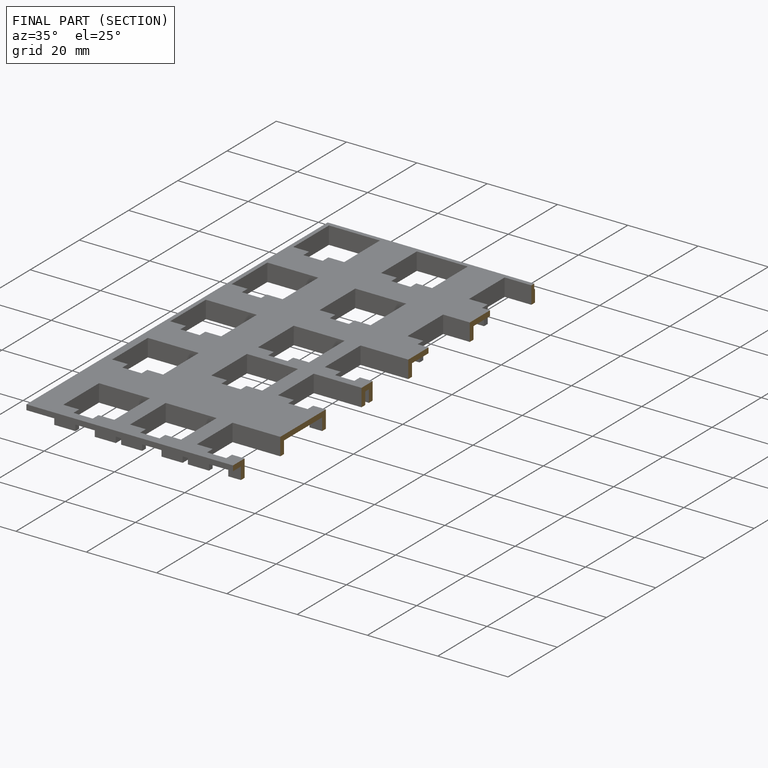
[diagram: finished part — half-section view (interior)]
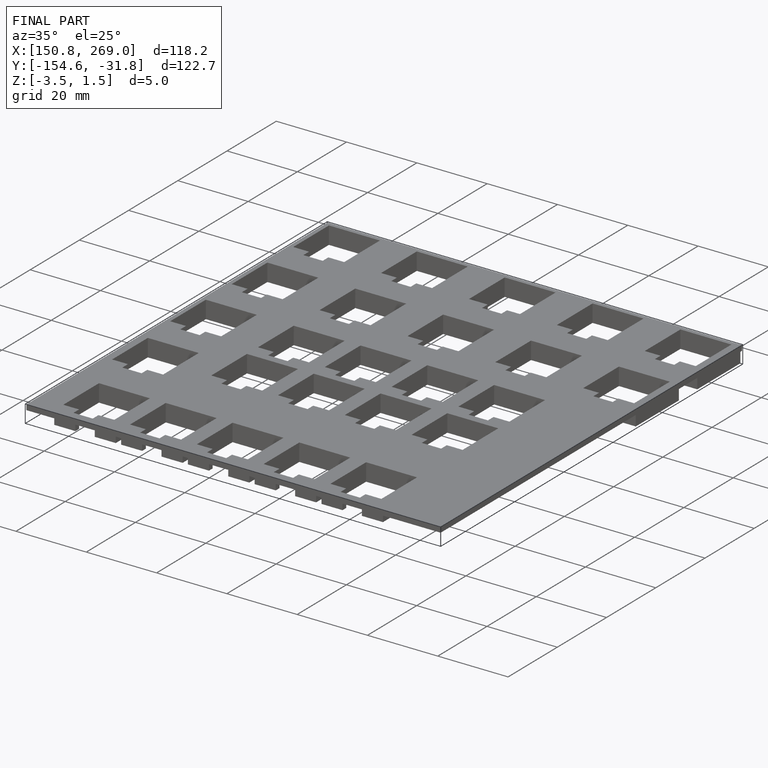
[diagram: finished part — iso view with bounding-box wireframe]
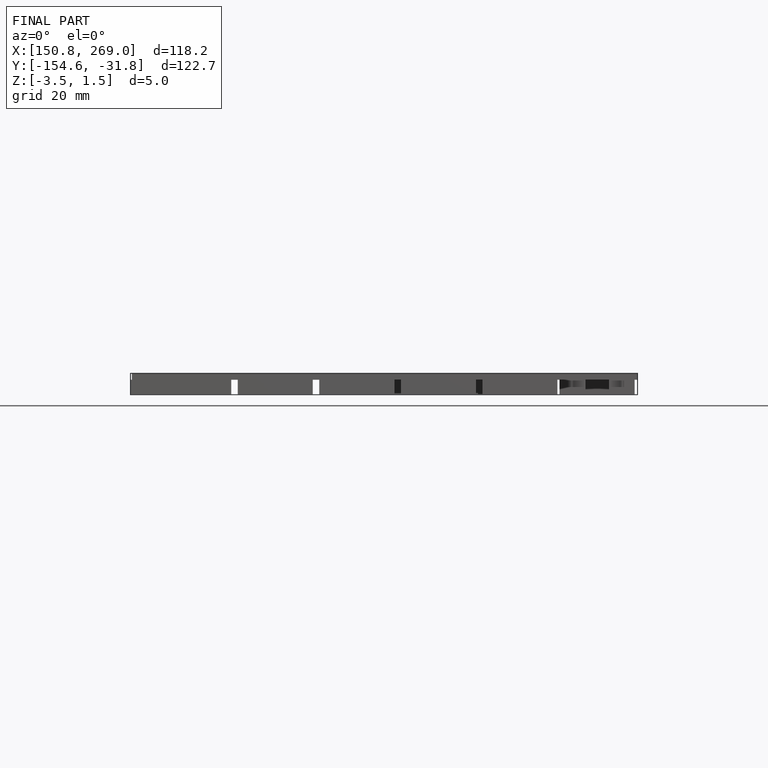
[diagram: finished part — front view with bounding-box wireframe]
